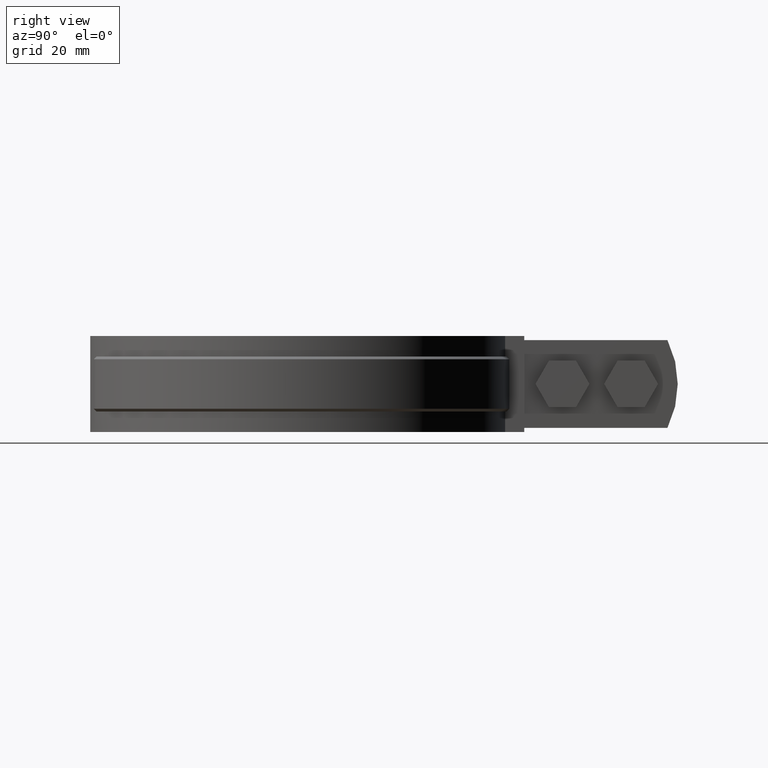
[diagram: clean part render]
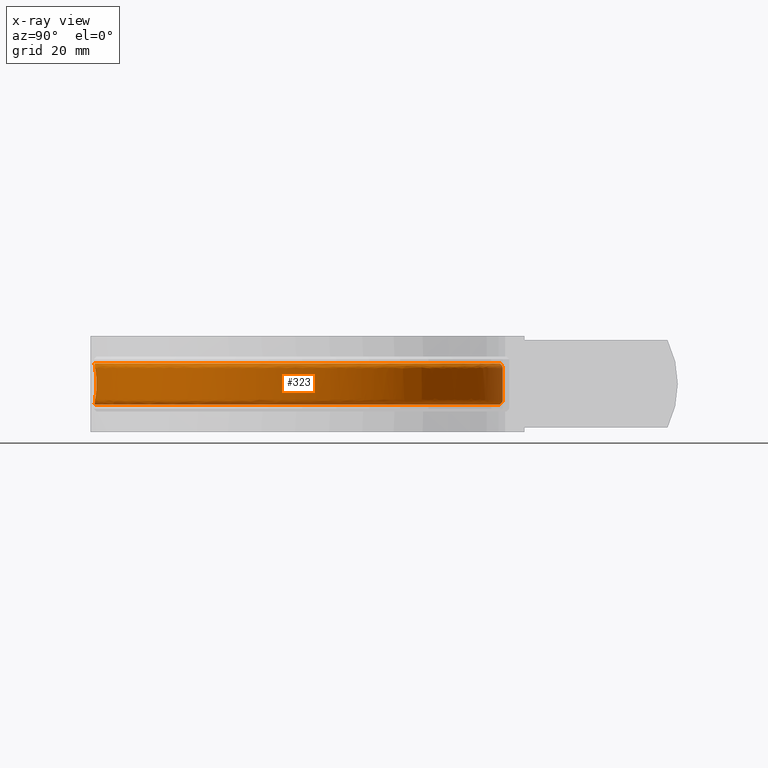
[diagram: x-ray — body ghosted, one internal face saturated and labeled with its STEP entity id]
A machine part, right view, then the same camera in x-ray: the body is ghosted and one INTERNAL B-rep face — a face not visible from any outside direction — is saturated and labeled: STEP entity #323.
In plain terms, the highlighted face is a freeform B-spline surface patch.
Its self-contained STEP definition (entity closure, byte-faithful):
#323 = ADVANCED_FACE( '', ( #484, #485 ), #486, .F. );
#484 = FACE_OUTER_BOUND( '', #816, .T. );
#485 = FACE_BOUND( '', #817, .T. );
#486 = B_SPLINE_SURFACE_WITH_KNOTS( '', 3, 3, ( ( #818, #819, #820, #821, #822, #823, #824, #825, #826, #827, #828, #829, #830, #831, #832, #833, #834 ), ( #835, #836, #837, #838, #839, #840, #841, #842, #843, #844, #845, #846, #847, #848, #849, #850, #851 ), ( #852, #853, #854, #855, #856, #857, #858, #859, #860, #861, #862, #863, #864, #865, #866, #867, #868 ), ( #869, #870, #871, #872, #873, #874, #875, #876, #877, #878, #879, #880, #881, #882, #883, #884, #885 ), ( #886, #887, #888, #889, #890, #891, #892, #893, #894, #895, #896, #897, #898, #899, #900, #901, #902 ), ( #903, #904, #905, #906, #907, #908, #909, #910, #911, #912, #913, #914, #915, #916, #917, #918, #919 ), ( #920, #921, #922, #923, #924, #925, #926, #927, #928, #929, #930, #931, #932, #933, #934, #935, #936 ), ( #937, #938, #939, #940, #941, #942, #943, #944, #945, #946, #947, #948, #949, #950, #951, #952, #953 ), ( #954, #955, #956, #957, #958, #959, #960, #961, #962, #963, #964, #965, #966, #967, #968, #969, #970 ), ( #971, #972, #973, #974, #975, #976, #977, #978, #979, #980, #981, #982, #983, #984, #985, #986, #987 ), ( #988, #989, #990, #991, #992, #993, #994, #995, #996, #997, #998, #999, #1000, #1001, #1002, #1003, #1004 ), ( #1005, #1006, #1007, #1008, #1009, #1010, #1011, #1012, #1013, #1014, #1015, #1016, #1017, #1018, #1019, #1020, #1021 ), ( #1022, #1023, #1024, #1025, #1026, #1027, #1028, #1029, #1030, #1031, #1032, #1033, #1034, #1035, #1036, #1037, #1038 ), ( #1039, #1040, #1041, #1042, #1043, #1044, #1045, #1046, #1047, #1048, #1049, #1050, #1051, #1052, #1053, #1054, #1055 ), ( #1056, #1057, #1058, #1059, #1060, #1061, #1062, #1063, #1064, #1065, #1066, #1067, #1068, #1069, #1070, #1071, #1072 ), ( #1073, #1074, #1075, #1076, #1077, #1078, #1079, #1080, #1081, #1082, #1083, #1084, #1085, #1086, #1087, #1088, #1089 ), ( #1090, #1091, #1092, #1093, #1094, #1095, #1096, #1097, #1098, #1099, #1100, #1101, #1102, #1103, #1104, #1105, #1106 ), ( #1107, #1108, #1109, #1110, #1111, #1112, #1113, #1114, #1115, #1116, #1117, #1118, #1119, #1120, #1121, #1122, #1123 ), ( #1124, #1125, #1126, #1127, #1128, #1129, #1130, #1131, #1132, #1133, #1134, #1135, #1136, #1137, #1138, #1139, #1140 ), ( #1141, #1142, #1143, #1144, #1145, #1146, #1147, #1148, #1149, #1150, #1151, #1152, #1153, #1154, #1155, #1156, #1157 ), ( #1158, #1159, #1160, #1161, #1162, #1163, #1164, #1165, #1166, #1167, #1168, #1169, #1170, #1171, #1172, #1173, #1174 ), ( #1175, #1176, #1177, #1178, #1179, #1180, #1181, #1182, #1183, #1184, #1185, #1186, #1187, #1188, #1189, #1190, #1191 ) ), .UNSPECIFIED., .F., .F., .F., ( 4, 3, 1, 1, 1, 3, 3, 1, 1, 1, 3, 4 ), ( 4, 1, 1, 1, 1, 1, 1, 1, 1, 1, 1, 1, 1, 1, 4 ), ( 0.000000000000000, 0.0909090909090909, 0.181818181818182, 0.272727272727273, 0.363636363636364, 0.454545454545455, 0.545454545454545, 0.636363636363636, 0.727272727272727, 0.818181818181818, 0.909090909090909, 1.00000000000000 ), ( 2.93919432429586, 4.00000000000000, 5.00000000000000, 6.00000000000000, 7.00000000000000, 8.00000000000000, 9.00000000000000, 10.0000000000000, 11.0000000000000, 12.0000000000000, 13.0000000000000, 14.0000000000000, 15.0000000000000, 16.0000000000000, 17.0000000000000 ), .UNSPECIFIED. );
#816 = EDGE_LOOP( '', ( #2330, #2331, #2332, #2333, #2334, #2335, #2336, #2337, #2338, #2339, #2340, #2341 ) );
#817 = EDGE_LOOP( '', ( #2342, #2343, #2344, #2345, #2346, #2347, #2348, #2349, #2350, #2351 ) );
#818 = CARTESIAN_POINT( '', ( -4.61425015195980, 70.7622317509286, -26.5000000000000 ) );
#819 = CARTESIAN_POINT( '', ( -15.5904203630949, 70.0470349368722, -26.5000000000000 ) );
#820 = CARTESIAN_POINT( '', ( -36.6178724669983, 63.5869264265580, -26.5000000000000 ) );
#821 = CARTESIAN_POINT( '', ( -60.4171282819462, 41.3778170815072, -26.5000000000000 ) );
#822 = CARTESIAN_POINT( '', ( -72.2798619034494, 11.7564386340877, -26.5000000000000 ) );
#823 = CARTESIAN_POINT( '', ( -70.4173990652024, -20.0977563256707, -26.5000000000000 ) );
#824 = CARTESIAN_POINT( '', ( -55.1858107136761, -48.1359457803464, -26.5000000000000 ) );
#825 = CARTESIAN_POINT( '', ( -29.4763509782398, -67.0349598757568, -26.5000000000000 ) );
#826 = CARTESIAN_POINT( '', ( 1.82953666322226, -73.2065161750958, -26.5000000000000 ) );
#827 = CARTESIAN_POINT( '', ( 32.7880639153756, -65.4788766479587, -26.5000000000000 ) );
#828 = CARTESIAN_POINT( '', ( 57.5213898570196, -45.3192513699048, -26.5000000000000 ) );
#829 = CARTESIAN_POINT( '', ( 71.3334128422005, -16.5551173620569, -26.5000000000000 ) );
#830 = CARTESIAN_POINT( '', ( 71.6023635221745, 15.3519610054325, -26.5000000000000 ) );
#831 = CARTESIAN_POINT( '', ( 58.2748608361785, 44.3452311182272, -26.5000000000000 ) );
#832 = CARTESIAN_POINT( '', ( 33.8899510704301, 64.9154153993196, -26.5000000000000 ) );
#833 = CARTESIAN_POINT( '', ( 13.3267450073814, 70.4210865172577, -26.5000000000000 ) );
#834 = CARTESIAN_POINT( '', ( 2.96461729470620, 70.8501201839495, -26.5000000000000 ) );
#835 = CARTESIAN_POINT( '', ( -4.58330382231513, 71.8998896366214, -25.3619288125423 ) );
#836 = CARTESIAN_POINT( '', ( -15.7397192382122, 71.1895043673446, -25.3619288125423 ) );
#837 = CARTESIAN_POINT( '', ( -37.1081463681043, 64.6569728626535, -25.3619288125423 ) );
#838 = CARTESIAN_POINT( '', ( -61.3221754302980, 42.1279841595101, -25.3619288125423 ) );
#839 = CARTESIAN_POINT( '', ( -73.4176082499287, 12.0506522216709, -25.3619288125423 ) );
#840 = CARTESIAN_POINT( '', ( -71.5723646246281, -20.3153564475006, -25.3619288125423 ) );
#841 = CARTESIAN_POINT( '', ( -56.1385669859300, -48.8240454349474, -25.3619288125423 ) );
#842 = CARTESIAN_POINT( '', ( -30.0460432527390, -68.0629145587926, -25.3619288125423 ) );
#843 = CARTESIAN_POINT( '', ( 1.75108133303469, -74.3791554281481, -25.3619288125423 ) );
#844 = CARTESIAN_POINT( '', ( 33.2157412539665, -66.5735602607233, -25.3619288125423 ) );
#845 = CARTESIAN_POINT( '', ( 58.3739903704118, -46.1281382677739, -25.3619288125423 ) );
#846 = CARTESIAN_POINT( '', ( 72.4490973285679, -16.9246351334278, -25.3619288125423 ) );
#847 = CARTESIAN_POINT( '', ( 72.7691627760226, 15.4919891642614, -25.3619288125423 ) );
#848 = CARTESIAN_POINT( '', ( 59.2717740308285, 44.9681477001160, -25.3619288125423 ) );
#849 = CARTESIAN_POINT( '', ( 34.5257198776660, 65.9032180638756, -25.3619288125423 ) );
#850 = CARTESIAN_POINT( '', ( 13.6462086014126, 71.5264525608277, -25.3619288125423 ) );
#851 = CARTESIAN_POINT( '', ( 3.11622377686040, 71.9780481525229, -25.3619288125423 ) );
#852 = CARTESIAN_POINT( '', ( -4.55235749267045, 73.0375475223142, -24.2238576250846 ) );
#853 = CARTESIAN_POINT( '', ( -15.8890181133296, 72.3319737978169, -24.2238576250846 ) );
#854 = CARTESIAN_POINT( '', ( -37.5984202692104, 65.7270192987490, -24.2238576250846 ) );
#855 = CARTESIAN_POINT( '', ( -62.2272225786497, 42.8781512375131, -24.2238576250846 ) );
#856 = CARTESIAN_POINT( '', ( -74.5553545964080, 12.3448658092541, -24.2238576250846 ) );
#857 = CARTESIAN_POINT( '', ( -72.7273301840538, -20.5329565693305, -24.2238576250846 ) );
#858 = CARTESIAN_POINT( '', ( -57.0913232581840, -49.5121450895483, -24.2238576250846 ) );
#859 = CARTESIAN_POINT( '', ( -30.6157355272383, -69.0908692418285, -24.2238576250846 ) );
#860 = CARTESIAN_POINT( '', ( 1.67262600284711, -75.5517946812004, -24.2238576250846 ) );
#861 = CARTESIAN_POINT( '', ( 33.6434185925574, -67.6682438734879, -24.2238576250846 ) );
#862 = CARTESIAN_POINT( '', ( 59.2265908838041, -46.9370251656430, -24.2238576250846 ) );
#863 = CARTESIAN_POINT( '', ( 73.5647818149354, -17.2941529047986, -24.2238576250846 ) );
#864 = CARTESIAN_POINT( '', ( 73.9359620298707, 15.6320173230902, -24.2238576250846 ) );
#865 = CARTESIAN_POINT( '', ( 60.2686872254784, 45.5910642820048, -24.2238576250846 ) );
#866 = CARTESIAN_POINT( '', ( 35.1614886849019, 66.8910207284315, -24.2238576250846 ) );
#867 = CARTESIAN_POINT( '', ( 13.9656721954438, 72.6318186043977, -24.2238576250846 ) );
#868 = CARTESIAN_POINT( '', ( 3.26783025901459, 73.1059761210964, -24.2238576250846 ) );
#869 = CARTESIAN_POINT( '', ( -4.52141116302577, 74.1752054080070, -23.0857864376269 ) );
#870 = CARTESIAN_POINT( '', ( -16.0383169884469, 73.4744432282892, -23.0857864376269 ) );
#871 = CARTESIAN_POINT( '', ( -38.0886941703164, 66.7970657348446, -23.0857864376269 ) );
#872 = CARTESIAN_POINT( '', ( -63.1322697270015, 43.6283183155160, -23.0857864376269 ) );
#873 = CARTESIAN_POINT( '', ( -75.6931009428873, 12.6390793968372, -23.0857864376269 ) );
#874 = CARTESIAN_POINT( '', ( -73.8822957434795, -20.7505566911604, -23.0857864376269 ) );
#875 = CARTESIAN_POINT( '', ( -58.0440795304379, -50.2002447441493, -23.0857864376269 ) );
#876 = CARTESIAN_POINT( '', ( -31.1854278017375, -70.1188239248644, -23.0857864376269 ) );
#877 = CARTESIAN_POINT( '', ( 1.59417067265954, -76.7244339342527, -23.0857864376269 ) );
#878 = CARTESIAN_POINT( '', ( 34.0710959311483, -68.7629274862524, -23.0857864376269 ) );
#879 = CARTESIAN_POINT( '', ( 60.0791913971964, -47.7459120635122, -23.0857864376269 ) );
#880 = CARTESIAN_POINT( '', ( 74.6804663013028, -17.6636706761694, -23.0857864376269 ) );
#881 = CARTESIAN_POINT( '', ( 75.1027612837188, 15.7720454819191, -23.0857864376269 ) );
#882 = CARTESIAN_POINT( '', ( 61.2656004201283, 46.2139808638935, -23.0857864376269 ) );
#883 = CARTESIAN_POINT( '', ( 35.7972574921378, 67.8788233929875, -23.0857864376269 ) );
#884 = CARTESIAN_POINT( '', ( 14.2851357894750, 73.7371846479677, -23.0857864376269 ) );
#885 = CARTESIAN_POINT( '', ( 3.41943674116879, 74.2339040896698, -23.0857864376269 ) );
#886 = CARTESIAN_POINT( '', ( -4.51889429902262, 74.2677310875714, -22.9932271442431 ) );
#887 = CARTESIAN_POINT( '', ( -16.0504594611992, 73.5673602306371, -22.9932271442431 ) );
#888 = CARTESIAN_POINT( '', ( -38.1285681310589, 66.8840925773693, -22.9932271442431 ) );
#889 = CARTESIAN_POINT( '', ( -63.2058771827157, 43.6893293800478, -22.9932271442431 ) );
#890 = CARTESIAN_POINT( '', ( -75.7856338169647, 12.6630077785331, -22.9932271442431 ) );
#891 = CARTESIAN_POINT( '', ( -73.9762290555967, -20.7682541021297, -22.9932271442431 ) );
#892 = CARTESIAN_POINT( '', ( -58.1215671676777, -50.2562078671151, -22.9932271442431 ) );
#893 = CARTESIAN_POINT( '', ( -31.2317608562555, -70.2024274464551, -22.9932271442431 ) );
#894 = CARTESIAN_POINT( '', ( 1.58778990315726, -76.8198046473089, -22.9932271442431 ) );
#895 = CARTESIAN_POINT( '', ( 34.1058789154577, -68.8519580695700, -22.9932271442431 ) );
#896 = CARTESIAN_POINT( '', ( 60.1485333697619, -47.8116988091211, -22.9932271442431 ) );
#897 = CARTESIAN_POINT( '', ( 74.7712048850009, -17.6937235447314, -22.9932271442431 ) );
#898 = CARTESIAN_POINT( '', ( 75.1976570298260, 15.7834339676113, -22.9932271442431 ) );
#899 = CARTESIAN_POINT( '', ( 61.3466793384585, 46.2646426496342, -22.9932271442431 ) );
#900 = CARTESIAN_POINT( '', ( 35.8489645489562, 67.9591613521956, -22.9932271442431 ) );
#901 = CARTESIAN_POINT( '', ( 14.3111177533902, 73.8270840330420, -22.9932271442431 ) );
#902 = CARTESIAN_POINT( '', ( 3.43176689152779, 74.3256384353852, -22.9932271442431 ) );
#903 = CARTESIAN_POINT( '', ( -4.51435634995178, 74.4345564786465, -22.7898759680773 ) );
#904 = CARTESIAN_POINT( '', ( -16.0723525483405, 73.7348911834190, -22.7898759680773 ) );
#905 = CARTESIAN_POINT( '', ( -38.2004615678421, 67.0410034707188, -22.7898759680773 ) );
#906 = CARTESIAN_POINT( '', ( -63.3385926909225, 43.7993333783792, -22.7898759680773 ) );
#907 = CARTESIAN_POINT( '', ( -75.9524721798704, 12.7061510621384, -22.7898759680773 ) );
#908 = CARTESIAN_POINT( '', ( -74.1455924323663, -20.8001628383841, -22.7898759680773 ) );
#909 = CARTESIAN_POINT( '', ( -58.2612787098881, -50.3571103400123, -22.7898759680773 ) );
#910 = CARTESIAN_POINT( '', ( -31.3153001501689, -70.3531660333023, -22.7898759680773 ) );
#911 = CARTESIAN_POINT( '', ( 1.57628526603826, -76.9917596826853, -22.7898759680773 ) );
#912 = CARTESIAN_POINT( '', ( 34.1685932342012, -69.0124817420199, -22.7898759680773 ) );
#913 = CARTESIAN_POINT( '', ( 60.2735581385138, -47.9303134425444, -22.7898759680773 ) );
#914 = CARTESIAN_POINT( '', ( 74.9348081115028, -17.7479093834562, -22.7898759680773 ) );
#915 = CARTESIAN_POINT( '', ( 75.3687556916270, 15.8039676031197, -22.7898759680772 ) );
#916 = CARTESIAN_POINT( '', ( 61.4928660222207, 46.3559867203673, -22.7898759680773 ) );
#917 = CARTESIAN_POINT( '', ( 35.9421932614139, 68.1040120739214, -22.7898759680773 ) );
#918 = CARTESIAN_POINT( '', ( 14.3579636810445, 73.9891741699969, -22.7898759680773 ) );
#919 = CARTESIAN_POINT( '', ( 3.45399836462085, 74.4910370379249, -22.7898759680773 ) );
#920 = CARTESIAN_POINT( '', ( -4.50929834940872, 74.6205001517645, -22.4418734431229 ) );
#921 = CARTESIAN_POINT( '', ( -16.0967545953714, 73.9216212760054, -22.4418734431229 ) );
#922 = CARTESIAN_POINT( '', ( -38.2805940322253, 67.2158964391909, -22.4418734431229 ) );
#923 = CARTESIAN_POINT( '', ( -63.4865174697386, 43.9219438957327, -22.4418734431229 ) );
#924 = CARTESIAN_POINT( '', ( -76.1384303113979, 12.7542385898956, -22.4418734431229 ) );
#925 = CARTESIAN_POINT( '', ( -74.3343649457424, -20.8357283334532, -22.4418734431229 ) );
#926 = CARTESIAN_POINT( '', ( -58.4170012720723, -50.4695762920853, -22.4418734431229 ) );
#927 = CARTESIAN_POINT( '', ( -31.4084130933477, -70.5211793455347, -22.4418734431229 ) );
#928 = CARTESIAN_POINT( '', ( 1.56346219114533, -77.1834208601773, -22.4418734431229 ) );
#929 = CARTESIAN_POINT( '', ( 34.2384946485429, -69.1914015160745, -22.4418734431229 ) );
#930 = CARTESIAN_POINT( '', ( 60.4129108148818, -48.0625213785315, -22.4418734431229 ) );
#931 = CARTESIAN_POINT( '', ( 75.1171603582062, -17.8083049492543, -22.4418734431229 ) );
#932 = CARTESIAN_POINT( '', ( 75.5594623546585, 15.8268544046090, -22.4418734431229 ) );
#933 = CARTESIAN_POINT( '', ( 61.6558057807582, 46.4577988721040, -22.4418734431229 ) );
#934 = CARTESIAN_POINT( '', ( 36.0461060358587, 68.2654627684344, -22.4418734431229 ) );
#935 = CARTESIAN_POINT( '', ( 14.4101781779057, 74.1698399262547, -22.4418734431229 ) );
#936 = CARTESIAN_POINT( '', ( 3.47877757682056, 74.6753904117525, -22.4418734431229 ) );
#937 = CARTESIAN_POINT( '', ( -4.50618364805317, 74.7350037003084, -22.0642686993349 ) );
#938 = CARTESIAN_POINT( '', ( -16.1117813017385, 74.0366090992668, -22.0642686993349 ) );
#939 = CARTESIAN_POINT( '', ( -38.3299393601495, 67.3235949974134, -22.0642686993349 ) );
#940 = CARTESIAN_POINT( '', ( -63.5776090987679, 43.9974470795214, -22.0642686993349 ) );
#941 = CARTESIAN_POINT( '', ( -76.2529427633863, 12.7838507432782, -22.0642686993349 ) );
#942 = CARTESIAN_POINT( '', ( -74.4506104855162, -20.8576294571798, -22.0642686993349 ) );
#943 = CARTESIAN_POINT( '', ( -58.5128947523905, -50.5388324834188, -22.0642686993349 ) );
#944 = CARTESIAN_POINT( '', ( -31.4657517606470, -70.6246414323625, -22.0642686993349 ) );
#945 = CARTESIAN_POINT( '', ( 1.55556578061486, -77.3014452305305, -22.0642686993349 ) );
#946 = CARTESIAN_POINT( '', ( 34.2815397269591, -69.3015797689313, -22.0642686993349 ) );
#947 = CARTESIAN_POINT( '', ( 60.4987237692871, -48.1439346235337, -22.0642686993349 ) );
#948 = CARTESIAN_POINT( '', ( 75.2294523172837, -17.8454963550399, -22.0642686993349 ) );
#949 = CARTESIAN_POINT( '', ( 75.6768989379091, 15.8409480273788, -22.0642686993349 ) );
#950 = CARTESIAN_POINT( '', ( 61.7561435886468, 46.5204944855832, -22.0642686993349 ) );
#951 = CARTESIAN_POINT( '', ( 36.1100952064147, 68.3648836152243, -22.0642686993349 ) );
#952 = CARTESIAN_POINT( '', ( 14.4423317063145, 74.2810933496436, -22.0642686993349 ) );
#953 = CARTESIAN_POINT( '', ( 3.49403654035189, 74.7889146588287, -22.0642686993349 ) );
#954 = CARTESIAN_POINT( '', ( -4.50548251075870, 74.7607791115174, -21.8024714832808 ) );
#955 = CARTESIAN_POINT( '', ( -16.1151639002750, 74.0624935235164, -21.8024714832808 ) );
#956 = CARTESIAN_POINT( '', ( -38.3410472789404, 67.3478385659326, -21.8024714832808 ) );
#957 = CARTESIAN_POINT( '', ( -63.5981143514503, 44.0144432829971, -21.8024714832808 ) );
#958 = CARTESIAN_POINT( '', ( -76.2787201788122, 12.7905166103184, -21.8024714832808 ) );
#959 = CARTESIAN_POINT( '', ( -74.4767780290289, -20.8625595268342, -21.8024714832809 ) );
#960 = CARTESIAN_POINT( '', ( -58.5344809295780, -50.5544224527524, -21.8024714832808 ) );
#961 = CARTESIAN_POINT( '', ( -31.4786590263747, -70.6479313466616, -21.8024714832808 ) );
#962 = CARTESIAN_POINT( '', ( 1.55378825292173, -77.3280131990977, -21.8024714832808 ) );
#963 = CARTESIAN_POINT( '', ( 34.2912294231372, -69.3263815310582, -21.8024714832808 ) );
#964 = CARTESIAN_POINT( '', ( 60.5180407617732, -48.1622612159798, -21.8024714832808 ) );
#965 = CARTESIAN_POINT( '', ( 75.2547298869092, -17.8538683556438, -21.8024714832808 ) );
#966 = CARTESIAN_POINT( '', ( 75.7033345921990, 15.8441205833994, -21.8024714832808 ) );
#967 = CARTESIAN_POINT( '', ( 61.7787302096819, 46.5346076308873, -21.8024714832809 ) );
#968 = CARTESIAN_POINT( '', ( 36.1244995389003, 68.3872638230112, -21.8024714832808 ) );
#969 = CARTESIAN_POINT( '', ( 14.4495696515756, 74.3061371388774, -21.8024714832808 ) );
#970 = CARTESIAN_POINT( '', ( 3.49747142131972, 74.8144696236118, -21.8024714832808 ) );
#971 = CARTESIAN_POINT( '', ( -4.50548251075870, 74.7607791115174, -21.6715728752538 ) );
#972 = CARTESIAN_POINT( '', ( -16.1151639002750, 74.0624935235164, -21.6715728752538 ) );
#973 = CARTESIAN_POINT( '', ( -38.3410472789404, 67.3478385659326, -21.6715728752538 ) );
#974 = CARTESIAN_POINT( '', ( -63.5981143514503, 44.0144432829971, -21.6715728752538 ) );
#975 = CARTESIAN_POINT( '', ( -76.2787201788122, 12.7905166103184, -21.6715728752538 ) );
#976 = CARTESIAN_POINT( '', ( -74.4767780290289, -20.8625595268342, -21.6715728752538 ) );
#977 = CARTESIAN_POINT( '', ( -58.5344809295780, -50.5544224527524, -21.6715728752538 ) );
#978 = CARTESIAN_POINT( '', ( -31.4786590263747, -70.6479313466616, -21.6715728752538 ) );
#979 = CARTESIAN_POINT( '', ( 1.55378825292173, -77.3280131990977, -21.6715728752538 ) );
#980 = CARTESIAN_POINT( '', ( 34.2912294231372, -69.3263815310582, -21.6715728752538 ) );
#981 = CARTESIAN_POINT( '', ( 60.5180407617732, -48.1622612159798, -21.6715728752538 ) );
#982 = CARTESIAN_POINT( '', ( 75.2547298869092, -17.8538683556438, -21.6715728752538 ) );
#983 = CARTESIAN_POINT( '', ( 75.7033345921990, 15.8441205833994, -21.6715728752538 ) );
#984 = CARTESIAN_POINT( '', ( 61.7787302096819, 46.5346076308873, -21.6715728752538 ) );
#985 = CARTESIAN_POINT( '', ( 36.1244995389003, 68.3872638230112, -21.6715728752538 ) );
#986 = CARTESIAN_POINT( '', ( 14.4495696515756, 74.3061371388774, -21.6715728752538 ) );
#987 = CARTESIAN_POINT( '', ( 3.49747142131972, 74.8144696236118, -21.6715728752538 ) );
#988 = CARTESIAN_POINT( '', ( -4.50548251075870, 74.7607791115174, -17.8905242917513 ) );
#989 = CARTESIAN_POINT( '', ( -16.1151639002750, 74.0624935235164, -17.8905242917513 ) );
#990 = CARTESIAN_POINT( '', ( -38.3410472789404, 67.3478385659326, -17.8905242917513 ) );
#991 = CARTESIAN_POINT( '', ( -63.5981143514503, 44.0144432829971, -17.8905242917513 ) );
#992 = CARTESIAN_POINT( '', ( -76.2787201788122, 12.7905166103184, -17.8905242917513 ) );
#993 = CARTESIAN_POINT( '', ( -74.4767780290289, -20.8625595268342, -17.8905242917513 ) );
#994 = CARTESIAN_POINT( '', ( -58.5344809295780, -50.5544224527524, -17.8905242917513 ) );
#995 = CARTESIAN_POINT( '', ( -31.4786590263747, -70.6479313466616, -17.8905242917513 ) );
#996 = CARTESIAN_POINT( '', ( 1.55378825292173, -77.3280131990977, -17.8905242917513 ) );
#997 = CARTESIAN_POINT( '', ( 34.2912294231372, -69.3263815310582, -17.8905242917513 ) );
#998 = CARTESIAN_POINT( '', ( 60.5180407617732, -48.1622612159798, -17.8905242917513 ) );
#999 = CARTESIAN_POINT( '', ( 75.2547298869093, -17.8538683556439, -17.8905242917513 ) );
#1000 = CARTESIAN_POINT( '', ( 75.7033345921990, 15.8441205833994, -17.8905242917512 ) );
#1001 = CARTESIAN_POINT( '', ( 61.7787302096820, 46.5346076308873, -17.8905242917513 ) );
#1002 = CARTESIAN_POINT( '', ( 36.1244995389003, 68.3872638230113, -17.8905242917513 ) );
#1003 = CARTESIAN_POINT( '', ( 14.4495696515756, 74.3061371388774, -17.8905242917513 ) );
#1004 = CARTESIAN_POINT( '', ( 3.49747142131972, 74.8144696236118, -17.8905242917513 ) );
#1005 = CARTESIAN_POINT( '', ( -4.50548251075870, 74.7607791115174, -14.1094757082487 ) );
#1006 = CARTESIAN_POINT( '', ( -16.1151639002750, 74.0624935235164, -14.1094757082487 ) );
#1007 = CARTESIAN_POINT( '', ( -38.3410472789404, 67.3478385659326, -14.1094757082487 ) );
#1008 = CARTESIAN_POINT( '', ( -63.5981143514503, 44.0144432829971, -14.1094757082487 ) );
#1009 = CARTESIAN_POINT( '', ( -76.2787201788122, 12.7905166103184, -14.1094757082487 ) );
#1010 = CARTESIAN_POINT( '', ( -74.4767780290289, -20.8625595268342, -14.1094757082487 ) );
#1011 = CARTESIAN_POINT( '', ( -58.5344809295780, -50.5544224527524, -14.1094757082487 ) );
#1012 = CARTESIAN_POINT( '', ( -31.4786590263747, -70.6479313466616, -14.1094757082487 ) );
#1013 = CARTESIAN_POINT( '', ( 1.55378825292173, -77.3280131990977, -14.1094757082487 ) );
#1014 = CARTESIAN_POINT( '', ( 34.2912294231372, -69.3263815310582, -14.1094757082487 ) );
#1015 = CARTESIAN_POINT( '', ( 60.5180407617732, -48.1622612159798, -14.1094757082487 ) );
#1016 = CARTESIAN_POINT( '', ( 75.2547298869093, -17.8538683556439, -14.1094757082487 ) );
#1017 = CARTESIAN_POINT( '', ( 75.7033345921990, 15.8441205833994, -14.1094757082487 ) );
#1018 = CARTESIAN_POINT( '', ( 61.7787302096820, 46.5346076308873, -14.1094757082487 ) );
#1019 = CARTESIAN_POINT( '', ( 36.1244995389003, 68.3872638230113, -14.1094757082487 ) );
#1020 = CARTESIAN_POINT( '', ( 14.4495696515756, 74.3061371388774, -14.1094757082487 ) );
#1021 = CARTESIAN_POINT( '', ( 3.49747142131972, 74.8144696236118, -14.1094757082487 ) );
#1022 = CARTESIAN_POINT( '', ( -4.50548251075870, 74.7607791115174, -10.3284271247462 ) );
#1023 = CARTESIAN_POINT( '', ( -16.1151639002750, 74.0624935235164, -10.3284271247462 ) );
#1024 = CARTESIAN_POINT( '', ( -38.3410472789404, 67.3478385659326, -10.3284271247462 ) );
#1025 = CARTESIAN_POINT( '', ( -63.5981143514503, 44.0144432829971, -10.3284271247462 ) );
#1026 = CARTESIAN_POINT( '', ( -76.2787201788122, 12.7905166103184, -10.3284271247462 ) );
#1027 = CARTESIAN_POINT( '', ( -74.4767780290289, -20.8625595268342, -10.3284271247462 ) );
#1028 = CARTESIAN_POINT( '', ( -58.5344809295780, -50.5544224527524, -10.3284271247462 ) );
#1029 = CARTESIAN_POINT( '', ( -31.4786590263747, -70.6479313466616, -10.3284271247462 ) );
#1030 = CARTESIAN_POINT( '', ( 1.55378825292173, -77.3280131990977, -10.3284271247462 ) );
#1031 = CARTESIAN_POINT( '', ( 34.2912294231372, -69.3263815310582, -10.3284271247462 ) );
#1032 = CARTESIAN_POINT( '', ( 60.5180407617732, -48.1622612159798, -10.3284271247462 ) );
#1033 = CARTESIAN_POINT( '', ( 75.2547298869093, -17.8538683556439, -10.3284271247462 ) );
#1034 = CARTESIAN_POINT( '', ( 75.7033345921990, 15.8441205833994, -10.3284271247462 ) );
#1035 = CARTESIAN_POINT( '', ( 61.7787302096820, 46.5346076308873, -10.3284271247462 ) );
#1036 = CARTESIAN_POINT( '', ( 36.1244995389003, 68.3872638230113, -10.3284271247462 ) );
#1037 = CARTESIAN_POINT( '', ( 14.4495696515756, 74.3061371388774, -10.3284271247462 ) );
#1038 = CARTESIAN_POINT( '', ( 3.49747142131972, 74.8144696236118, -10.3284271247462 ) );
#1039 = CARTESIAN_POINT( '', ( -4.50548251075870, 74.7607791115174, -10.1975285167192 ) );
#1040 = CARTESIAN_POINT( '', ( -16.1151639002750, 74.0624935235164, -10.1975285167192 ) );
#1041 = CARTESIAN_POINT( '', ( -38.3410472789404, 67.3478385659326, -10.1975285167192 ) );
#1042 = CARTESIAN_POINT( '', ( -63.5981143514503, 44.0144432829971, -10.1975285167192 ) );
#1043 = CARTESIAN_POINT( '', ( -76.2787201788122, 12.7905166103184, -10.1975285167192 ) );
#1044 = CARTESIAN_POINT( '', ( -74.4767780290289, -20.8625595268342, -10.1975285167192 ) );
#1045 = CARTESIAN_POINT( '', ( -58.5344809295780, -50.5544224527524, -10.1975285167192 ) );
#1046 = CARTESIAN_POINT( '', ( -31.4786590263747, -70.6479313466616, -10.1975285167192 ) );
#1047 = CARTESIAN_POINT( '', ( 1.55378825292173, -77.3280131990977, -10.1975285167192 ) );
#1048 = CARTESIAN_POINT( '', ( 34.2912294231372, -69.3263815310582, -10.1975285167192 ) );
#1049 = CARTESIAN_POINT( '', ( 60.5180407617732, -48.1622612159798, -10.1975285167192 ) );
#1050 = CARTESIAN_POINT( '', ( 75.2547298869093, -17.8538683556439, -10.1975285167192 ) );
#1051 = CARTESIAN_POINT( '', ( 75.7033345921990, 15.8441205833994, -10.1975285167192 ) );
#1052 = CARTESIAN_POINT( '', ( 61.7787302096820, 46.5346076308873, -10.1975285167192 ) );
#1053 = CARTESIAN_POINT( '', ( 36.1244995389003, 68.3872638230113, -10.1975285167192 ) );
#1054 = CARTESIAN_POINT( '', ( 14.4495696515756, 74.3061371388774, -10.1975285167192 ) );
#1055 = CARTESIAN_POINT( '', ( 3.49747142131972, 74.8144696236118, -10.1975285167192 ) );
#1056 = CARTESIAN_POINT( '', ( -4.50618364805317, 74.7350037003084, -9.93573130066510 ) );
#1057 = CARTESIAN_POINT( '', ( -16.1117813017385, 74.0366090992668, -9.93573130066510 ) );
#1058 = CARTESIAN_POINT( '', ( -38.3299393601495, 67.3235949974135, -9.93573130066510 ) );
#1059 = CARTESIAN_POINT( '', ( -63.5776090987679, 43.9974470795214, -9.93573130066510 ) );
#1060 = CARTESIAN_POINT( '', ( -76.2529427633863, 12.7838507432782, -9.93573130066510 ) );
#1061 = CARTESIAN_POINT( '', ( -74.4506104855162, -20.8576294571798, -9.93573130066511 ) );
#1062 = CARTESIAN_POINT( '', ( -58.5128947523905, -50.5388324834188, -9.93573130066510 ) );
#1063 = CARTESIAN_POINT( '', ( -31.4657517606470, -70.6246414323625, -9.93573130066511 ) );
#1064 = CARTESIAN_POINT( '', ( 1.55556578061486, -77.3014452305306, -9.93573130066510 ) );
#1065 = CARTESIAN_POINT( '', ( 34.2815397269591, -69.3015797689313, -9.93573130066510 ) );
#1066 = CARTESIAN_POINT( '', ( 60.4987237692871, -48.1439346235337, -9.93573130066510 ) );
#1067 = CARTESIAN_POINT( '', ( 75.2294523172837, -17.8454963550399, -9.93573130066510 ) );
#1068 = CARTESIAN_POINT( '', ( 75.6768989379092, 15.8409480273788, -9.93573130066510 ) );
#1069 = CARTESIAN_POINT( '', ( 61.7561435886468, 46.5204944855833, -9.93573130066511 ) );
#1070 = CARTESIAN_POINT( '', ( 36.1100952064147, 68.3648836152242, -9.93573130066511 ) );
#1071 = CARTESIAN_POINT( '', ( 14.4423317063145, 74.2810933496436, -9.93573130066510 ) );
#1072 = CARTESIAN_POINT( '', ( 3.49403654035189, 74.7889146588287, -9.93573130066510 ) );
#1073 = CARTESIAN_POINT( '', ( -4.50929834940872, 74.6205001517646, -9.55812655687708 ) );
#1074 = CARTESIAN_POINT( '', ( -16.0967545953714, 73.9216212760054, -9.55812655687708 ) );
#1075 = CARTESIAN_POINT( '', ( -38.2805940322253, 67.2158964391909, -9.55812655687708 ) );
#1076 = CARTESIAN_POINT( '', ( -63.4865174697386, 43.9219438957327, -9.55812655687707 ) );
#1077 = CARTESIAN_POINT( '', ( -76.1384303113979, 12.7542385898956, -9.55812655687708 ) );
#1078 = CARTESIAN_POINT( '', ( -74.3343649457424, -20.8357283334532, -9.55812655687708 ) );
#1079 = CARTESIAN_POINT( '', ( -58.4170012720724, -50.4695762920853, -9.55812655687708 ) );
#1080 = CARTESIAN_POINT( '', ( -31.4084130933477, -70.5211793455347, -9.55812655687708 ) );
#1081 = CARTESIAN_POINT( '', ( 1.56346219114533, -77.1834208601773, -9.55812655687708 ) );
#1082 = CARTESIAN_POINT( '', ( 34.2384946485429, -69.1914015160745, -9.55812655687708 ) );
#1083 = CARTESIAN_POINT( '', ( 60.4129108148818, -48.0625213785315, -9.55812655687708 ) );
#1084 = CARTESIAN_POINT( '', ( 75.1171603582062, -17.8083049492543, -9.55812655687708 ) );
#1085 = CARTESIAN_POINT( '', ( 75.5594623546585, 15.8268544046090, -9.55812655687707 ) );
#1086 = CARTESIAN_POINT( '', ( 61.6558057807582, 46.4577988721040, -9.55812655687708 ) );
#1087 = CARTESIAN_POINT( '', ( 36.0461060358587, 68.2654627684344, -9.55812655687708 ) );
#1088 = CARTESIAN_POINT( '', ( 14.4101781779057, 74.1698399262547, -9.55812655687708 ) );
#1089 = CARTESIAN_POINT( '', ( 3.47877757682057, 74.6753904117525, -9.55812655687708 ) );
#1090 = CARTESIAN_POINT( '', ( -4.51435634995178, 74.4345564786465, -9.21012403192273 ) );
#1091 = CARTESIAN_POINT( '', ( -16.0723525483405, 73.7348911834190, -9.21012403192273 ) );
#1092 = CARTESIAN_POINT( '', ( -38.2004615678421, 67.0410034707188, -9.21012403192273 ) );
#1093 = CARTESIAN_POINT( '', ( -63.3385926909225, 43.7993333783792, -9.21012403192272 ) );
#1094 = CARTESIAN_POINT( '', ( -75.9524721798704, 12.7061510621384, -9.21012403192273 ) );
#1095 = CARTESIAN_POINT( '', ( -74.1455924323663, -20.8001628383841, -9.21012403192273 ) );
#1096 = CARTESIAN_POINT( '', ( -58.2612787098881, -50.3571103400123, -9.21012403192273 ) );
#1097 = CARTESIAN_POINT( '', ( -31.3153001501689, -70.3531660333023, -9.21012403192273 ) );
#1098 = CARTESIAN_POINT( '', ( 1.57628526603826, -76.9917596826853, -9.21012403192273 ) );
#1099 = CARTESIAN_POINT( '', ( 34.1685932342012, -69.0124817420199, -9.21012403192273 ) );
#1100 = CARTESIAN_POINT( '', ( 60.2735581385138, -47.9303134425444, -9.21012403192273 ) );
#1101 = CARTESIAN_POINT( '', ( 74.9348081115028, -17.7479093834562, -9.21012403192273 ) );
#1102 = CARTESIAN_POINT( '', ( 75.3687556916270, 15.8039676031197, -9.21012403192272 ) );
#1103 = CARTESIAN_POINT( '', ( 61.4928660222207, 46.3559867203673, -9.21012403192273 ) );
#1104 = CARTESIAN_POINT( '', ( 35.9421932614139, 68.1040120739214, -9.21012403192273 ) );
#1105 = CARTESIAN_POINT( '', ( 14.3579636810445, 73.9891741699969, -9.21012403192273 ) );
#1106 = CARTESIAN_POINT( '', ( 3.45399836462086, 74.4910370379249, -9.21012403192273 ) );
#1107 = CARTESIAN_POINT( '', ( -4.51889429902262, 74.2677310875714, -9.00677285575690 ) );
#1108 = CARTESIAN_POINT( '', ( -16.0504594611992, 73.5673602306371, -9.00677285575690 ) );
#1109 = CARTESIAN_POINT( '', ( -38.1285681310589, 66.8840925773693, -9.00677285575690 ) );
#1110 = CARTESIAN_POINT( '', ( -63.2058771827157, 43.6893293800478, -9.00677285575690 ) );
#1111 = CARTESIAN_POINT( '', ( -75.7856338169647, 12.6630077785331, -9.00677285575690 ) );
#1112 = CARTESIAN_POINT( '', ( -73.9762290555967, -20.7682541021297, -9.00677285575691 ) );
#1113 = CARTESIAN_POINT( '', ( -58.1215671676777, -50.2562078671151, -9.00677285575690 ) );
#1114 = CARTESIAN_POINT( '', ( -31.2317608562555, -70.2024274464551, -9.00677285575691 ) );
#1115 = CARTESIAN_POINT( '', ( 1.58778990315726, -76.8198046473089, -9.00677285575690 ) );
#1116 = CARTESIAN_POINT( '', ( 34.1058789154577, -68.8519580695700, -9.00677285575690 ) );
#1117 = CARTESIAN_POINT( '', ( 60.1485333697619, -47.8116988091211, -9.00677285575690 ) );
#1118 = CARTESIAN_POINT( '', ( 74.7712048850009, -17.6937235447314, -9.00677285575690 ) );
#1119 = CARTESIAN_POINT( '', ( 75.1976570298260, 15.7834339676113, -9.00677285575690 ) );
#1120 = CARTESIAN_POINT( '', ( 61.3466793384585, 46.2646426496342, -9.00677285575691 ) );
#1121 = CARTESIAN_POINT( '', ( 35.8489645489562, 67.9591613521956, -9.00677285575690 ) );
#1122 = CARTESIAN_POINT( '', ( 14.3111177533902, 73.8270840330420, -9.00677285575690 ) );
#1123 = CARTESIAN_POINT( '', ( 3.43176689152779, 74.3256384353852, -9.00677285575690 ) );
#1124 = CARTESIAN_POINT( '', ( -4.52141116302577, 74.1752054080070, -8.91421356237310 ) );
#1125 = CARTESIAN_POINT( '', ( -16.0383169884469, 73.4744432282892, -8.91421356237310 ) );
#1126 = CARTESIAN_POINT( '', ( -38.0886941703164, 66.7970657348446, -8.91421356237311 ) );
#1127 = CARTESIAN_POINT( '', ( -63.1322697270015, 43.6283183155160, -8.91421356237310 ) );
#1128 = CARTESIAN_POINT( '', ( -75.6931009428873, 12.6390793968372, -8.91421356237310 ) );
#1129 = CARTESIAN_POINT( '', ( -73.8822957434795, -20.7505566911604, -8.91421356237311 ) );
#1130 = CARTESIAN_POINT( '', ( -58.0440795304379, -50.2002447441493, -8.91421356237310 ) );
#1131 = CARTESIAN_POINT( '', ( -31.1854278017375, -70.1188239248644, -8.91421356237311 ) );
#1132 = CARTESIAN_POINT( '', ( 1.59417067265954, -76.7244339342527, -8.91421356237310 ) );
#1133 = CARTESIAN_POINT( '', ( 34.0710959311483, -68.7629274862524, -8.91421356237310 ) );
#1134 = CARTESIAN_POINT( '', ( 60.0791913971964, -47.7459120635122, -8.91421356237310 ) );
#1135 = CARTESIAN_POINT( '', ( 74.6804663013028, -17.6636706761694, -8.91421356237310 ) );
#1136 = CARTESIAN_POINT( '', ( 75.1027612837188, 15.7720454819191, -8.91421356237310 ) );
#1137 = CARTESIAN_POINT( '', ( 61.2656004201283, 46.2139808638935, -8.91421356237311 ) );
#1138 = CARTESIAN_POINT( '', ( 35.7972574921378, 67.8788233929875, -8.91421356237311 ) );
#1139 = CARTESIAN_POINT( '', ( 14.2851357894750, 73.7371846479677, -8.91421356237310 ) );
#1140 = CARTESIAN_POINT( '', ( 3.41943674116879, 74.2339040896698, -8.91421356237310 ) );
#1141 = CARTESIAN_POINT( '', ( -4.55235749267045, 73.0375475223142, -7.77614237491541 ) );
#1142 = CARTESIAN_POINT( '', ( -15.8890181133296, 72.3319737978169, -7.77614237491541 ) );
#1143 = CARTESIAN_POINT( '', ( -37.5984202692104, 65.7270192987491, -7.77614237491541 ) );
#1144 = CARTESIAN_POINT( '', ( -62.2272225786497, 42.8781512375131, -7.77614237491541 ) );
#1145 = CARTESIAN_POINT( '', ( -74.5553545964081, 12.3448658092541, -7.77614237491541 ) );
#1146 = CARTESIAN_POINT( '', ( -72.7273301840538, -20.5329565693305, -7.77614237491541 ) );
#1147 = CARTESIAN_POINT( '', ( -57.0913232581840, -49.5121450895484, -7.77614237491541 ) );
#1148 = CARTESIAN_POINT( '', ( -30.6157355272383, -69.0908692418285, -7.77614237491541 ) );
#1149 = CARTESIAN_POINT( '', ( 1.67262600284711, -75.5517946812004, -7.77614237491541 ) );
#1150 = CARTESIAN_POINT( '', ( 33.6434185925574, -67.6682438734879, -7.77614237491541 ) );
#1151 = CARTESIAN_POINT( '', ( 59.2265908838041, -46.9370251656431, -7.77614237491541 ) );
#1152 = CARTESIAN_POINT( '', ( 73.5647818149354, -17.2941529047986, -7.77614237491541 ) );
#1153 = CARTESIAN_POINT( '', ( 73.9359620298707, 15.6320173230902, -7.77614237491541 ) );
#1154 = CARTESIAN_POINT( '', ( 60.2686872254784, 45.5910642820048, -7.77614237491541 ) );
#1155 = CARTESIAN_POINT( '', ( 35.1614886849019, 66.8910207284315, -7.77614237491541 ) );
#1156 = CARTESIAN_POINT( '', ( 13.9656721954438, 72.6318186043977, -7.77614237491541 ) );
#1157 = CARTESIAN_POINT( '', ( 3.26783025901459, 73.1059761210964, -7.77614237491541 ) );
#1158 = CARTESIAN_POINT( '', ( -4.58330382231512, 71.8998896366214, -6.63807118745771 ) );
#1159 = CARTESIAN_POINT( '', ( -15.7397192382122, 71.1895043673446, -6.63807118745771 ) );
#1160 = CARTESIAN_POINT( '', ( -37.1081463681043, 64.6569728626535, -6.63807118745771 ) );
#1161 = CARTESIAN_POINT( '', ( -61.3221754302980, 42.1279841595102, -6.63807118745771 ) );
#1162 = CARTESIAN_POINT( '', ( -73.4176082499288, 12.0506522216709, -6.63807118745771 ) );
#1163 = CARTESIAN_POINT( '', ( -71.5723646246281, -20.3153564475006, -6.63807118745772 ) );
#1164 = CARTESIAN_POINT( '', ( -56.1385669859300, -48.8240454349474, -6.63807118745771 ) );
#1165 = CARTESIAN_POINT( '', ( -30.0460432527390, -68.0629145587926, -6.63807118745772 ) );
#1166 = CARTESIAN_POINT( '', ( 1.75108133303468, -74.3791554281481, -6.63807118745771 ) );
#1167 = CARTESIAN_POINT( '', ( 33.2157412539665, -66.5735602607233, -6.63807118745771 ) );
#1168 = CARTESIAN_POINT( '', ( 58.3739903704119, -46.1281382677739, -6.63807118745771 ) );
#1169 = CARTESIAN_POINT( '', ( 72.4490973285679, -16.9246351334278, -6.63807118745771 ) );
#1170 = CARTESIAN_POINT( '', ( 72.7691627760226, 15.4919891642614, -6.63807118745771 ) );
#1171 = CARTESIAN_POINT( '', ( 59.2717740308285, 44.9681477001160, -6.63807118745772 ) );
#1172 = CARTESIAN_POINT( '', ( 34.5257198776660, 65.9032180638756, -6.63807118745771 ) );
#1173 = CARTESIAN_POINT( '', ( 13.6462086014126, 71.5264525608277, -6.63807118745771 ) );
#1174 = CARTESIAN_POINT( '', ( 3.11622377686040, 71.9780481525230, -6.63807118745771 ) );
#1175 = CARTESIAN_POINT( '', ( -4.61425015195980, 70.7622317509286, -5.50000000000002 ) );
#1176 = CARTESIAN_POINT( '', ( -15.5904203630949, 70.0470349368723, -5.50000000000002 ) );
#1177 = CARTESIAN_POINT( '', ( -36.6178724669983, 63.5869264265580, -5.50000000000002 ) );
#1178 = CARTESIAN_POINT( '', ( -60.4171282819462, 41.3778170815072, -5.50000000000002 ) );
#1179 = CARTESIAN_POINT( '', ( -72.2798619034495, 11.7564386340877, -5.50000000000002 ) );
#1180 = CARTESIAN_POINT( '', ( -70.4173990652024, -20.0977563256707, -5.50000000000002 ) );
#1181 = CARTESIAN_POINT( '', ( -55.1858107136761, -48.1359457803465, -5.50000000000002 ) );
#1182 = CARTESIAN_POINT( '', ( -29.4763509782398, -67.0349598757568, -5.50000000000002 ) );
#1183 = CARTESIAN_POINT( '', ( 1.82953666322226, -73.2065161750958, -5.50000000000002 ) );
#1184 = CARTESIAN_POINT( '', ( 32.7880639153756, -65.4788766479587, -5.50000000000002 ) );
#1185 = CARTESIAN_POINT( '', ( 57.5213898570196, -45.3192513699048, -5.50000000000002 ) );
#1186 = CARTESIAN_POINT( '', ( 71.3334128422005, -16.5551173620569, -5.50000000000002 ) );
#1187 = CARTESIAN_POINT( '', ( 71.6023635221745, 15.3519610054325, -5.50000000000001 ) );
#1188 = CARTESIAN_POINT( '', ( 58.2748608361786, 44.3452311182273, -5.50000000000002 ) );
#1189 = CARTESIAN_POINT( '', ( 33.8899510704301, 64.9154153993196, -5.50000000000002 ) );
#1190 = CARTESIAN_POINT( '', ( 13.3267450073814, 70.4210865172577, -5.50000000000002 ) );
#1191 = CARTESIAN_POINT( '', ( 2.96461729470620, 70.8501201839495, -5.50000000000002 ) );
#2330 = ORIENTED_EDGE( '', *, *, #4661, .T. );
#2331 = ORIENTED_EDGE( '', *, *, #4662, .T. );
#2332 = ORIENTED_EDGE( '', *, *, #4663, .T. );
#2333 = ORIENTED_EDGE( '', *, *, #4664, .T. );
#2334 = ORIENTED_EDGE( '', *, *, #4665, .T. );
#2335 = ORIENTED_EDGE( '', *, *, #4666, .T. );
#2336 = ORIENTED_EDGE( '', *, *, #4667, .T. );
#2337 = ORIENTED_EDGE( '', *, *, #4668, .T. );
#2338 = ORIENTED_EDGE( '', *, *, #4669, .T. );
#2339 = ORIENTED_EDGE( '', *, *, #4670, .T. );
#2340 = ORIENTED_EDGE( '', *, *, #4671, .T. );
#2341 = ORIENTED_EDGE( '', *, *, #4672, .T. );
#2342 = ORIENTED_EDGE( '', *, *, #4673, .T. );
#2343 = ORIENTED_EDGE( '', *, *, #4674, .T. );
#2344 = ORIENTED_EDGE( '', *, *, #4675, .T. );
#2345 = ORIENTED_EDGE( '', *, *, #4676, .T. );
#2346 = ORIENTED_EDGE( '', *, *, #4677, .T. );
#2347 = ORIENTED_EDGE( '', *, *, #4678, .T. );
#2348 = ORIENTED_EDGE( '', *, *, #4655, .T. );
#2349 = ORIENTED_EDGE( '', *, *, #4654, .T. );
#2350 = ORIENTED_EDGE( '', *, *, #4653, .T. );
#2351 = ORIENTED_EDGE( '', *, *, #4652, .T. );
#4652 = EDGE_CURVE( '', #5089, #5087, #5090, .T. );
#4653 = EDGE_CURVE( '', #5091, #5089, #5092, .T. );
#4654 = EDGE_CURVE( '', #5093, #5091, #5094, .T. );
#4655 = EDGE_CURVE( '', #5095, #5093, #5096, .T. );
#4661 = EDGE_CURVE( '', #5105, #5106, #5107, .T. );
#4662 = EDGE_CURVE( '', #5106, #5108, #5109, .T. );
#4663 = EDGE_CURVE( '', #5108, #5110, #5111, .T. );
#4664 = EDGE_CURVE( '', #5110, #5112, #5113, .T. );
#4665 = EDGE_CURVE( '', #5112, #5114, #5115, .T. );
#4666 = EDGE_CURVE( '', #5114, #5116, #5117, .T. );
#4667 = EDGE_CURVE( '', #5116, #5118, #5119, .T. );
#4668 = EDGE_CURVE( '', #5118, #5120, #5121, .T. );
#4669 = EDGE_CURVE( '', #5120, #5122, #5123, .T. );
#4670 = EDGE_CURVE( '', #5122, #5124, #5125, .T. );
#4671 = EDGE_CURVE( '', #5124, #5126, #5127, .T. );
#4672 = EDGE_CURVE( '', #5126, #5105, #5128, .T. );
#4673 = EDGE_CURVE( '', #5087, #5129, #5130, .T. );
#4674 = EDGE_CURVE( '', #5129, #5131, #5132, .T. );
#4675 = EDGE_CURVE( '', #5131, #5133, #5134, .T. );
#4676 = EDGE_CURVE( '', #5133, #5135, #5136, .T. );
#4677 = EDGE_CURVE( '', #5135, #5137, #5138, .T. );
#4678 = EDGE_CURVE( '', #5137, #5095, #5139, .T. );
#5087 = VERTEX_POINT( '', #6087 );
#5089 = VERTEX_POINT( '', #6090 );
#5090 = B_SPLINE_CURVE_WITH_KNOTS( '', 3, ( #6091, #6092, #6093, #6094, #6095, #6096, #6097, #6098, #6099, #6100 ), .UNSPECIFIED., .F., .F., ( 4, 2, 2, 2, 4 ), ( 0.000000000000000, 0.00109224876232963, 0.00218449752465925, 0.00327674628698888, 0.00436899504931851 ), .UNSPECIFIED. );
#5091 = VERTEX_POINT( '', #6101 );
#5092 = B_SPLINE_CURVE_WITH_KNOTS( '', 3, ( #6102, #6103, #6104, #6105, #6106, #6107, #6108, #6109, #6110, #6111, #6112, #6113, #6114, #6115 ), .UNSPECIFIED., .F., .F., ( 4, 2, 2, 2, 2, 2, 4 ), ( 0.000000000000000, 0.00165547402122474, 0.00248321103183710, 0.00331094804244947, 0.00413868505306184, 0.00496642206367421, 0.00662189608489894 ), .UNSPECIFIED. );
#5093 = VERTEX_POINT( '', #6116 );
#5094 = B_SPLINE_CURVE_WITH_KNOTS( '', 3, ( #6117, #6118, #6119, #6120, #6121, #6122, #6123, #6124, #6125, #6126, #6127, #6128, #6129, #6130 ), .UNSPECIFIED., .F., .F., ( 4, 2, 2, 2, 2, 2, 4 ), ( 0.000000000000000, 0.00165615506174739, 0.00248423259262109, 0.00331231012349480, 0.00414038765436850, 0.00496846518524220, 0.00662462024698960 ), .UNSPECIFIED. );
#5095 = VERTEX_POINT( '', #6131 );
#5096 = B_SPLINE_CURVE_WITH_KNOTS( '', 3, ( #6132, #6133, #6134, #6135, #6136, #6137, #6138, #6139, #6140, #6141 ), .UNSPECIFIED., .F., .F., ( 4, 2, 2, 2, 4 ), ( 7.15244812269100E-018, 0.00109233196012366, 0.00218466392024731, 0.00327699588037096, 0.00436932784049460 ), .UNSPECIFIED. );
#5105 = VERTEX_POINT( '', #6220 );
#5106 = VERTEX_POINT( '', #6221 );
#5107 = B_SPLINE_CURVE_WITH_KNOTS( '', 3, ( #6222, #6223, #6224, #6225, #6226, #6227, #6228, #6229, #6230, #6231, #6232, #6233, #6234, #6235, #6236, #6237, #6238, #6239, #6240, #6241, #6242, #6243, #6244, #6245, #6246, #6247, #6248, #6249, #6250, #6251, #6252, #6253, #6254, #6255, #6256, #6257, #6258, #6259, #6260, #6261, #6262, #6263, #6264, #6265, #6266, #6267, #6268, #6269, #6270, #6271, #6272, #6273, #6274, #6275, #6276, #6277, #6278, #6279, #6280, #6281, #6282, #6283, #6284, #6285, #6286, #6287, #6288, #6289, #6290, #6291, #6292, #6293, #6294, #6295, #6296, #6297, #6298, #6299, #6300, #6301, #6302, #6303, #6304, #6305, #6306, #6307, #6308, #6309, #6310, #6311, #6312, #6313, #6314, #6315, #6316, #6317, #6318, #6319, #6320, #6321, #6322, #6323, #6324, #6325, #6326, #6327, #6328, #6329, #6330, #6331, #6332, #6333, #6334, #6335, #6336, #6337, #6338, #6339, #6340, #6341, #6342, #6343, #6344, #6345, #6346, #6347, #6348, #6349, #6350, #6351 ), .UNSPECIFIED., .F., .F., ( 4, 2, 2, 2, 2, 2, 2, 2, 2, 2, 2, 2, 2, 2, 2, 2, 2, 2, 2, 2, 2, 2, 2, 2, 2, 2, 2, 2, 2, 2, 2, 2, 2, 2, 2, 2, 2, 2, 2, 2, 2, 2, 2, 2, 2, 2, 2, 2, 2, 2, 2, 2, 2, 2, 2, 2, 2, 2, 2, 2, 2, 2, 2, 2, 4 ), ( 1.73472347597681E-018, 0.00704588124542007, 0.0140917624908401, 0.0176147031135502, 0.0211376437362602, 0.0281835249816803, 0.0422752874725205, 0.0457982280952305, 0.0493211687179406, 0.0563670499633607, 0.0704588124542008, 0.0845505749450409, 0.0915964561904610, 0.0951193968131711, 0.0986423374358811, 0.112734099926721, 0.119779981172141, 0.123302921794851, 0.126825862417561, 0.140917624908402, 0.144440565531112, 0.147963506153822, 0.155009387399242, 0.169101149890082, 0.172624090512792, 0.176147031135502, 0.183192912380922, 0.190238793626342, 0.193761734249052, 0.197284674871762, 0.211376437362602, 0.218422318608022, 0.221945259230732, 0.225468199853442, 0.239559962344282, 0.246605843589703, 0.253651724835123, 0.267743487325963, 0.271266427948673, 0.274789368571383, 0.281835249816803, 0.288881131062223, 0.295927012307643, 0.299449952930353, 0.302972893553063, 0.310018774798483, 0.317064656043903, 0.320587596666613, 0.324110537289323, 0.338202299780163, 0.345248181025584, 0.348771121648294, 0.352294062271004, 0.366385824761844, 0.369908765384554, 0.373431706007264, 0.380477587252684, 0.387523468498104, 0.394569349743524, 0.398092290366234, 0.401615230988944, 0.408661112234364, 0.422752874725204, 0.436844637216044, 0.450936399706885 ), .UNSPECIFIED. );
#5108 = VERTEX_POINT( '', #6352 );
#5109 = B_SPLINE_CURVE_WITH_KNOTS( '', 3, ( #6353, #6354, #6355, #6356, #6357, #6358, #6359, #6360 ), .UNSPECIFIED., .F., .F., ( 4, 2, 2, 4 ), ( 2.45326946669340E-017, 0.000374263803652309, 0.000748527607304593, 0.00149705521460917 ), .UNSPECIFIED. );
#5110 = VERTEX_POINT( '', #6361 );
#5111 = B_SPLINE_CURVE_WITH_KNOTS( '', 3, ( #6362, #6363, #6364, #6365, #6366, #6367, #6368, #6369, #6370, #6371 ), .UNSPECIFIED., .F., .F., ( 4, 2, 2, 2, 4 ), ( 0.000000000000000, 0.000430482837782009, 0.000860965675564019, 0.00129144851334603, 0.00172193135112804 ), .UNSPECIFIED. );
#5112 = VERTEX_POINT( '', #6372 );
#5113 = B_SPLINE_CURVE_WITH_KNOTS( '', 3, ( #6373, #6374, #6375, #6376 ), .UNSPECIFIED., .F., .F., ( 4, 4 ), ( 0.000000000000000, 0.0113431328655665 ), .UNSPECIFIED. );
#5114 = VERTEX_POINT( '', #6377 );
#5115 = B_SPLINE_CURVE_WITH_KNOTS( '', 3, ( #6378, #6379, #6380, #6381, #6382, #6383, #6384, #6385, #6386, #6387 ), .UNSPECIFIED., .F., .F., ( 4, 2, 2, 2, 4 ), ( 0.000000000000000, 0.000430527154512757, 0.000861054309025514, 0.00129158146353827, 0.00172210861805103 ), .UNSPECIFIED. );
#5116 = VERTEX_POINT( '', #6388 );
#5117 = B_SPLINE_CURVE_WITH_KNOTS( '', 3, ( #6389, #6390, #6391, #6392, #6393, #6394, #6395, #6396 ), .UNSPECIFIED., .F., .F., ( 4, 2, 2, 4 ), ( 2.02487636552658E-017, 0.000749766223790542, 0.00112464933568580, 0.00149953244758105 ), .UNSPECIFIED. );
#5118 = VERTEX_POINT( '', #6397 );
#5119 = B_SPLINE_CURVE_WITH_KNOTS( '', 3, ( #6398, #6399, #6400, #6401, #6402, #6403, #6404, #6405, #6406, #6407, #6408, #6409, #6410, #6411, #6412, #6413, #6414, #6415, #6416, #6417, #6418, #6419, #6420, #6421, #6422, #6423, #6424, #6425, #6426, #6427, #6428, #6429, #6430, #6431, #6432, #6433, #6434, #6435, #6436, #6437, #6438, #6439, #6440, #6441, #6442, #6443, #6444, #6445, #6446, #6447, #6448, #6449, #6450, #6451, #6452, #6453, #6454, #6455, #6456, #6457, #6458, #6459, #6460, #6461, #6462, #6463, #6464, #6465, #6466, #6467, #6468, #6469, #6470, #6471, #6472, #6473, #6474, #6475, #6476, #6477, #6478, #6479, #6480, #6481, #6482, #6483, #6484, #6485, #6486, #6487, #6488, #6489, #6490, #6491, #6492, #6493, #6494, #6495, #6496, #6497, #6498, #6499, #6500, #6501, #6502, #6503, #6504, #6505, #6506, #6507, #6508, #6509, #6510, #6511, #6512, #6513, #6514, #6515, #6516, #6517, #6518, #6519, #6520, #6521, #6522, #6523, #6524, #6525, #6526, #6527, #6528, #6529, #6530, #6531 ), .UNSPECIFIED., .F., .F., ( 4, 2, 2, 2, 2, 2, 2, 2, 2, 2, 2, 2, 2, 2, 2, 2, 2, 2, 2, 2, 2, 2, 2, 2, 2, 2, 2, 2, 2, 2, 2, 2, 2, 2, 2, 2, 2, 2, 2, 2, 2, 2, 2, 2, 2, 2, 2, 2, 2, 2, 2, 2, 2, 2, 2, 2, 2, 2, 2, 2, 2, 2, 2, 2, 2, 2, 4 ), ( 1.73472347597681E-018, 0.00704588033080244, 0.0140917606616049, 0.0176147008270061, 0.0211376409924073, 0.0281835213232097, 0.0422752819848145, 0.0457982221502157, 0.0493211623156170, 0.0563670426464194, 0.0634129229772218, 0.0704588033080243, 0.0845505639696291, 0.0915964443004316, 0.0951193844658328, 0.0986423246312340, 0.112734085292839, 0.119779965623641, 0.123302905789042, 0.126825845954444, 0.140917606616049, 0.144440546781450, 0.147963486946851, 0.155009367277653, 0.162055247608456, 0.169101127939258, 0.172624068104659, 0.176147008270061, 0.183192888600863, 0.190238768931665, 0.193761709097067, 0.197284649262468, 0.211376409924073, 0.218422290254875, 0.221945230420276, 0.225468170585677, 0.239559931247282, 0.246605811578085, 0.253651691908887, 0.260697572239689, 0.267743452570492, 0.271266392735893, 0.274789332901294, 0.281835213232096, 0.295926973893701, 0.299449914059103, 0.302972854224504, 0.310018734555306, 0.317064614886109, 0.320587555051510, 0.324110495216911, 0.338202255878516, 0.345248136209318, 0.348771076374719, 0.352294016540120, 0.359339896870923, 0.366385777201725, 0.369908717367127, 0.373431657532528, 0.380477537863330, 0.394569298524935, 0.398092238690336, 0.401615178855737, 0.408661059186540, 0.422752819848145, 0.436844580509749, 0.450936341171354 ), .UNSPECIFIED. );
#5120 = VERTEX_POINT( '', #6532 );
#5121 = B_SPLINE_CURVE_WITH_KNOTS( '', 3, ( #6533, #6534, #6535, #6536, #6537, #6538, #6539, #6540 ), .UNSPECIFIED., .F., .F., ( 4, 2, 2, 4 ), ( 8.67361737988404E-018, 0.000374252634507942, 0.000748505269015875, 0.00149701053803176 ), .UNSPECIFIED. );
#5122 = VERTEX_POINT( '', #6541 );
#5123 = B_SPLINE_CURVE_WITH_KNOTS( '', 3, ( #6542, #6543, #6544, #6545, #6546, #6547, #6548, #6549, #6550, #6551 ), .UNSPECIFIED., .F., .F., ( 4, 2, 2, 2, 4 ), ( 2.02301782785592E-017, 0.000430532095496192, 0.000861064190992363, 0.00129159628648853, 0.00172212838198471 ), .UNSPECIFIED. );
#5124 = VERTEX_POINT( '', #6552 );
#5125 = B_SPLINE_CURVE_WITH_KNOTS( '', 3, ( #6553, #6554, #6555, #6556 ), .UNSPECIFIED., .F., .F., ( 4, 4 ), ( 0.000000000000000, 0.0113431327218812 ), .UNSPECIFIED. );
#5126 = VERTEX_POINT( '', #6557 );
#5127 = B_SPLINE_CURVE_WITH_KNOTS( '', 3, ( #6558, #6559, #6560, #6561, #6562, #6563, #6564, #6565, #6566, #6567 ), .UNSPECIFIED., .F., .F., ( 4, 2, 2, 2, 4 ), ( 0.000000000000000, 0.000430826983751848, 0.000861653967503696, 0.00129248095125554, 0.00172330793500739 ), .UNSPECIFIED. );
#5128 = B_SPLINE_CURVE_WITH_KNOTS( '', 3, ( #6568, #6569, #6570, #6571, #6572, #6573, #6574, #6575 ), .UNSPECIFIED., .F., .F., ( 4, 2, 2, 4 ), ( 0.000000000000000, 0.000749244303605150, 0.00112386645540773, 0.00149848860721032 ), .UNSPECIFIED. );
#5129 = VERTEX_POINT( '', #6576 );
#5130 = B_SPLINE_CURVE_WITH_KNOTS( '', 3, ( #6577, #6578, #6579, #6580, #6581 ), .UNSPECIFIED., .F., .F., ( 4, 1, 4 ), ( 0.223328497516543, 0.229821863728987, 0.239399438572131 ), .UNSPECIFIED. );
#5131 = VERTEX_POINT( '', #6582 );
#5132 = B_SPLINE_CURVE_WITH_KNOTS( '', 3, ( #6583, #6584, #6585, #6586, #6587, #6588, #6589, #6590, #6591, #6592 ), .UNSPECIFIED., .F., .F., ( 4, 2, 2, 2, 4 ), ( 1.73472347597681E-018, 0.00109232419723982, 0.00218464839447963, 0.00327697259171944, 0.00436929678895926 ), .UNSPECIFIED. );
#5133 = VERTEX_POINT( '', #6593 );
#5134 = B_SPLINE_CURVE_WITH_KNOTS( '', 3, ( #6594, #6595, #6596, #6597, #6598, #6599, #6600, #6601, #6602, #6603, #6604, #6605, #6606, #6607 ), .UNSPECIFIED., .F., .F., ( 4, 2, 2, 2, 2, 2, 4 ), ( 1.73472347597681E-018, 0.00165613411782688, 0.00248420117674032, 0.00331226823565376, 0.00414033529456720, 0.00496840235348064, 0.00662453647130753 ), .UNSPECIFIED. );
#5135 = VERTEX_POINT( '', #6608 );
#5136 = B_SPLINE_CURVE_WITH_KNOTS( '', 3, ( #6609, #6610, #6611, #6612, #6613, #6614, #6615, #6616, #6617, #6618, #6619, #6620, #6621, #6622 ), .UNSPECIFIED., .F., .F., ( 4, 2, 2, 2, 2, 2, 4 ), ( 7.15244812269100E-018, 0.00165543612937666, 0.00248315419406499, 0.00331087225875332, 0.00413859032344164, 0.00496630838812997, 0.00662174451750662 ), .UNSPECIFIED. );
#5137 = VERTEX_POINT( '', #6623 );
#5138 = B_SPLINE_CURVE_WITH_KNOTS( '', 3, ( #6624, #6625, #6626, #6627, #6628, #6629, #6630, #6631, #6632, #6633 ), .UNSPECIFIED., .F., .F., ( 4, 2, 2, 2, 4 ), ( 0.000000000000000, 0.00109226300496044, 0.00218452600992088, 0.00327678901488132, 0.00436905201984176 ), .UNSPECIFIED. );
#5139 = B_SPLINE_CURVE_WITH_KNOTS( '', 3, ( #6634, #6635, #6636, #6637, #6638 ), .UNSPECIFIED., .F., .F., ( 4, 1, 4 ), ( 0.221357414002099, 0.230923126671731, 0.237408450614817 ), .UNSPECIFIED. );
#6087 = CARTESIAN_POINT( '', ( 7.99999999999998, -73.9587154829955, -23.0000000000000 ) );
#6090 = CARTESIAN_POINT( '', ( 12.1038549320928, -73.9057521011076, -21.6708354495910 ) );
#6091 = CARTESIAN_POINT( '', ( 12.1038549320928, -73.9057521011076, -21.6708354495910 ) );
#6092 = CARTESIAN_POINT( '', ( 11.8074936139214, -73.9544632435484, -21.8853054105113 ) );
#6093 = CARTESIAN_POINT( '', ( 11.4966077985978, -73.9698594450702, -22.0750724598707 ) );
#6094 = CARTESIAN_POINT( '', ( 10.8469551075434, -73.9697420894683, -22.4052804860932 ) );
#6095 = CARTESIAN_POINT( '', ( 10.5056648622722, -73.9535807053793, -22.5463716279917 ) );
#6096 = CARTESIAN_POINT( '', ( 9.81093637255427, -73.9209836052295, -22.7715468947915 ) );
#6097 = CARTESIAN_POINT( '', ( 9.45697676916025, -73.9046942460528, -22.8564384907195 ) );
#6098 = CARTESIAN_POINT( '', ( 8.73515616083405, -73.9030414663990, -22.9708733672389 ) );
#6099 = CARTESIAN_POINT( '', ( 8.36629085747321, -73.9188311260135, -23.0000000000000 ) );
#6100 = CARTESIAN_POINT( '', ( 7.99999999999998, -73.9587154829955, -23.0000000000000 ) );
#6101 = CARTESIAN_POINT( '', ( 15.0000000000000, -73.3714122438786, -16.0000000000000 ) );
#6102 = CARTESIAN_POINT( '', ( 15.0000000000000, -73.3714122438786, -16.0000000000000 ) );
#6103 = CARTESIAN_POINT( '', ( 15.0000000000000, -73.3714122438786, -16.5579162590393 ) );
#6104 = CARTESIAN_POINT( '', ( 14.9342380515913, -73.3849665658234, -17.1058283376687 ) );
#6105 = CARTESIAN_POINT( '', ( 14.7392020764841, -73.4243655815382, -17.9130561386025 ) );
#6106 = CARTESIAN_POINT( '', ( 14.6574244635552, -73.4407987198613, -18.1805414222455 ) );
#6107 = CARTESIAN_POINT( '', ( 14.4652326610202, -73.4789669482292, -18.6975596417781 ) );
#6108 = CARTESIAN_POINT( '', ( 14.3545566264378, -73.5007559740509, -18.9486798216576 ) );
#6109 = CARTESIAN_POINT( '', ( 14.1045800183267, -73.5492365472637, -19.4364524453425 ) );
#6110 = CARTESIAN_POINT( '', ( 13.9652800042784, -73.5759290479219, -19.6731050725835 ) );
#6111 = CARTESIAN_POINT( '', ( 13.6573674554170, -73.6338439614292, -20.1316413055916 ) );
#6112 = CARTESIAN_POINT( '', ( 13.4891993318886, -73.6649722579199, -20.3524482851837 ) );
#6113 = CARTESIAN_POINT( '', ( 12.9535403823550, -73.7619831915143, -20.9762334352398 ) );
#6114 = CARTESIAN_POINT( '', ( 12.5517293870233, -73.8321376479653, -21.3467188697389 ) );
#6115 = CARTESIAN_POINT( '', ( 12.1038549320928, -73.9057521011076, -21.6708354495910 ) );
#6116 = CARTESIAN_POINT( '', ( 12.1041902368304, -73.9056969882905, -10.3294072179440 ) );
#6117 = CARTESIAN_POINT( '', ( 12.1041902368304, -73.9056969882905, -10.3294072179440 ) );
#6118 = CARTESIAN_POINT( '', ( 12.5520486408083, -73.8320830973701, -10.6535525339160 ) );
#6119 = CARTESIAN_POINT( '', ( 12.9548104941053, -73.7617660515344, -11.0247670928152 ) );
#6120 = CARTESIAN_POINT( '', ( 13.4924507619446, -73.6643768927231, -11.6515799414131 ) );
#6121 = CARTESIAN_POINT( '', ( 13.6608482592053, -73.6331947539599, -11.8732175607782 ) );
#6122 = CARTESIAN_POINT( '', ( 13.9669803068318, -73.5756036533634, -12.3297571834689 ) );
#6123 = CARTESIAN_POINT( '', ( 14.1058197114168, -73.5489979289945, -12.5657720033096 ) );
#6124 = CARTESIAN_POINT( '', ( 14.3553940903632, -73.5005917324624, -13.0531504555280 ) );
#6125 = CARTESIAN_POINT( '', ( 14.4661307998936, -73.4787900085967, -13.3045130432551 ) );
#6126 = CARTESIAN_POINT( '', ( 14.6586471724625, -73.4405544550677, -13.8230950209134 ) );
#6127 = CARTESIAN_POINT( '', ( 14.7401451543369, -73.4241756412102, -14.0903994405510 ) );
#6128 = CARTESIAN_POINT( '', ( 14.9342389621617, -73.3849652338204, -14.8950773744942 ) );
#6129 = CARTESIAN_POINT( '', ( 15.0000000000000, -73.3714122438786, -15.4420788787305 ) );
#6130 = CARTESIAN_POINT( '', ( 15.0000000000000, -73.3714122438786, -16.0000000000000 ) );
#6131 = CARTESIAN_POINT( '', ( 7.99999999999998, -73.9587154829955, -9.00000000000001 ) );
#6132 = CARTESIAN_POINT( '', ( 7.99999999999998, -73.9587154829955, -9.00000000000000 ) );
#6133 = CARTESIAN_POINT( '', ( 8.36690574344457, -73.9187641728502, -9.00000000000000 ) );
#6134 = CARTESIAN_POINT( '', ( 8.73028863297248, -73.9032007940037, -9.02867632789731 ) );
#6135 = CARTESIAN_POINT( '', ( 9.44989331199182, -73.9045103596180, -9.14212244112585 ) );
#6136 = CARTESIAN_POINT( '', ( 9.80855817132593, -73.9208728210779, -9.22776980862210 ) );
#6137 = CARTESIAN_POINT( '', ( 10.5050201424768, -73.9535496555925, -9.45333225909045 ) );
#6138 = CARTESIAN_POINT( '', ( 10.8415323688724, -73.9695721262103, -9.59230366044823 ) );
#6139 = CARTESIAN_POINT( '', ( 11.4917196505518, -73.9700248841465, -9.92210789292826 ) );
#6140 = CARTESIAN_POINT( '', ( 11.8076324054495, -73.9544418050830, -10.1147683251530 ) );
#6141 = CARTESIAN_POINT( '', ( 12.1041902368304, -73.9056969882905, -10.3294072179440 ) );
#6220 = CARTESIAN_POINT( '', ( 8.70549738219897, 73.3854502972390, -8.50093267490259 ) );
#6221 = CARTESIAN_POINT( '', ( -8.70549738219894, 73.3854502972390, -8.50120173153015 ) );
#6222 = CARTESIAN_POINT( '', ( 8.70549738219898, 73.3854502972390, -8.50093267490264 ) );
#6223 = CARTESIAN_POINT( '', ( 11.0386278200771, 73.1086779828769, -8.50218096446049 ) );
#6224 = CARTESIAN_POINT( '', ( 13.3600652752888, 72.7200011837140, -8.50394606679155 ) );
#6225 = CARTESIAN_POINT( '', ( 17.9357490972773, 71.7286471407266, -8.50599857525138 ) );
#6226 = CARTESIAN_POINT( '', ( 20.1926911122749, 71.1261108806446, -8.50629020420024 ) );
#6227 = CARTESIAN_POINT( '', ( 23.5320267017817, 70.0629597230021, -8.50540751236699 ) );
#6228 = CARTESIAN_POINT( '', ( 24.6374460426640, 69.6819734224687, -8.50490996117067 ) );
#6229 = CARTESIAN_POINT( '', ( 26.8327885830162, 68.8664114384797, -8.50367328977348 ) );
#6230 = CARTESIAN_POINT( '', ( 27.9250016743275, 68.4308308806278, -8.50293252220052 ) );
#6231 = CARTESIAN_POINT( '', ( 31.1597824380177, 67.0505428204160, -8.50081375256510 ) );
#6232 = CARTESIAN_POINT( '', ( 33.2565035574718, 66.0348377347572, -8.49956767246257 ) );
#6233 = CARTESIAN_POINT( '', ( 39.3727474325429, 62.7099358451956, -8.50133275474228 ) );
#6234 = CARTESIAN_POINT( '', ( 43.2198684122572, 60.1253755052454, -8.50701201677228 ) );
#6235 = CARTESIAN_POINT( '', ( 47.7354012192344, 56.4260973155591, -8.50783091930311 ) );
#6236 = CARTESIAN_POINT( '', ( 48.6251310857749, 55.6613326613343, -8.50775486433766 ) );
#6237 = CARTESIAN_POINT( '', ( 50.3680646322124, 54.0892354535520, -8.50713733206018 ) );
#6238 = CARTESIAN_POINT( '', ( 51.2174098292835, 53.2855145954039, -8.50659840500773 ) );
#6239 = CARTESIAN_POINT( '', ( 53.7003911874877, 50.8223821517835, -8.50453345207905 ) );
#6240 = CARTESIAN_POINT( '', ( 55.2691165976049, 49.1111153259660, -8.50250255522172 ) );
#6241 = CARTESIAN_POINT( '', ( 59.7204825352856, 43.7737542131421, -8.49851346690408 ) );
#6242 = CARTESIAN_POINT( '', ( 62.3506483473923, 39.9459647153640, -8.50293679692619 ) );
#6243 = CARTESIAN_POINT( '', ( 66.9073847724519, 31.7283045448753, -8.50846326035940 ) );
#6244 = CARTESIAN_POINT( '', ( 68.7617991084410, 27.4679991962147, -8.50749100612501 ) );
#6245 = CARTESIAN_POINT( '', ( 70.9310054628619, 20.8654969541986, -8.50263058907983 ) );
#6246 = CARTESIAN_POINT( '', ( 71.5514766727908, 18.6287526516230, -8.50069693535146 ) );
#6247 = CARTESIAN_POINT( '', ( 72.3253641012611, 15.2187472373087, -8.49986736729511 ) );
#6248 = CARTESIAN_POINT( '', ( 72.5571467474700, 14.0729154406950, -8.50003863729232 ) );
#6249 = CARTESIAN_POINT( '', ( 72.9673121872574, 11.7625611710276, -8.50102634661709 ) );
#6250 = CARTESIAN_POINT( '', ( 73.1448544660190, 10.6020705427132, -8.50179800445858 ) );
#6251 = CARTESIAN_POINT( '', ( 73.8910039426483, 4.81120470481889, -8.50588639263683 ) );
#6252 = CARTESIAN_POINT( '', ( 74.0453410375375, 0.178813894452979, -8.50862277389830 ) );
#6253 = CARTESIAN_POINT( '', ( 73.6258773574120, -6.76932857045994, -8.50590975486266 ) );
#6254 = CARTESIAN_POINT( '', ( 73.3768454037364, -9.08530160215037, -8.50412030127912 ) );
#6255 = CARTESIAN_POINT( '', ( 72.8344107534461, -12.5591459442818, -8.50167655365503 ) );
#6256 = CARTESIAN_POINT( '', ( 72.6253035325194, -13.7164633929130, -8.50092112817069 ) );
#6257 = CARTESIAN_POINT( '', ( 72.1552114245767, -16.0062970569188, -8.49999621674994 ) );
#6258 = CARTESIAN_POINT( '', ( 71.8937798662998, -17.1419381855447, -8.49987616402906 ) );
#6259 = CARTESIAN_POINT( '', ( 70.4567827320674, -22.7744993047610, -8.50142776715836 ) );
#6260 = CARTESIAN_POINT( '', ( 68.8951278758969, -27.1356916094740, -8.50697487877598 ) );
#6261 = CARTESIAN_POINT( '', ( 66.4262586993821, -32.4055057893378, -8.50763060394554 ) );
#6262 = CARTESIAN_POINT( '', ( 65.9064300699728, -33.4503093007299, -8.50752451779058 ) );
#6263 = CARTESIAN_POINT( '', ( 64.8137334036860, -35.5212707987571, -8.50685906787854 ) );
#6264 = CARTESIAN_POINT( '', ( 64.2398355189500, -36.5489014127288, -8.50629761744347 ) );
#6265 = CARTESIAN_POINT( '', ( 62.4561858537711, -39.5715743497236, -8.50419421709457 ) );
#6266 = CARTESIAN_POINT( '', ( 61.1796790907232, -41.5166673913788, -8.50217687417717 ) );
#6267 = CARTESIAN_POINT( '', ( 57.0949363632196, -47.1474862681028, -8.49849948011400 ) );
#6268 = CARTESIAN_POINT( '', ( 54.0337372793008, -50.6305617552892, -8.50326901361408 ) );
#6269 = CARTESIAN_POINT( '', ( 49.7734037238358, -54.6368585846183, -8.50655039265560 ) );
#6270 = CARTESIAN_POINT( '', ( 48.8971274513297, -55.4224891526820, -8.50705027967912 ) );
#6271 = CARTESIAN_POINT( '', ( 47.1165098046875, -56.9439714166085, -8.50758044532025 ) );
#6272 = CARTESIAN_POINT( '', ( 46.2113056150308, -57.6808488402973, -8.50761266139968 ) );
#6273 = CARTESIAN_POINT( '', ( 43.4518006774668, -59.8211616087297, -8.50700937274043 ) );
#6274 = CARTESIAN_POINT( '', ( 41.5537038191875, -61.1544316429872, -8.50561308908727 ) );
#6275 = CARTESIAN_POINT( '', ( 37.6424477683402, -63.6366320343663, -8.50233780065222 ) );
#6276 = CARTESIAN_POINT( '', ( 35.6292874869650, -64.7855606471921, -8.50045897730716 ) );
#6277 = CARTESIAN_POINT( '', ( 32.5222768209389, -66.3691401118183, -8.49987377908990 ) );
#6278 = CARTESIAN_POINT( '', ( 31.4720376749015, -66.8736594612214, -8.50014514617234 ) );
#6279 = CARTESIAN_POINT( '', ( 29.3419599016971, -67.8352775056830, -8.50123985661164 ) );
#6280 = CARTESIAN_POINT( '', ( 28.2592586317262, -68.2934735637753, -8.50204198151559 ) );
#6281 = CARTESIAN_POINT( '', ( 22.8083793364091, -70.4483889750536, -8.50620217716199 ) );
#6282 = CARTESIAN_POINT( '', ( 18.3496940726828, -71.7354860994469, -8.50865868979338 ) );
#6283 = CARTESIAN_POINT( '', ( 11.5197426884913, -73.0333885152003, -8.50569717949168 ) );
#6284 = CARTESIAN_POINT( '', ( 9.21927723348366, -73.3598473803367, -8.50385793878910 ) );
#6285 = CARTESIAN_POINT( '', ( 5.73203541589779, -73.6866123531569, -8.50146218134006 ) );
#6286 = CARTESIAN_POINT( '', ( 4.56155253742048, -73.7684177537562, -8.50073968031005 ) );
#6287 = CARTESIAN_POINT( '', ( 2.21692237810213, -73.8760615802833, -8.49992803012742 ) );
#6288 = CARTESIAN_POINT( '', ( 1.04790425122266, -73.9017655913329, -8.49991104491835 ) );
#6289 = CARTESIAN_POINT( '', ( -4.78102656389903, -73.8924675347369, -8.50180640743610 ) );
#6290 = CARTESIAN_POINT( '', ( -9.39288691757961, -73.4476497763069, -8.50719001454467 ) );
#6291 = CARTESIAN_POINT( '', ( -16.2346612886172, -72.1320952726402, -8.50768892407217 ) );
#6292 = CARTESIAN_POINT( '', ( -18.5025008202618, -71.5848187003418, -8.50683809570342 ) );
#6293 = CARTESIAN_POINT( '', ( -23.0117810925844, -70.2651174901998, -8.50392222655471 ) );
#6294 = CARTESIAN_POINT( '', ( -25.2177229204897, -69.5030282657170, -8.50189482448069 ) );
#6295 = CARTESIAN_POINT( '', ( -31.6898343962619, -66.9219122973642, -8.49850326986037 ) );
#6296 = CARTESIAN_POINT( '', ( -35.8136289549228, -64.8099692970272, -8.50360043853273 ) );
#6297 = CARTESIAN_POINT( '', ( -40.7270272398110, -61.6755858173057, -8.50671286521662 ) );
#6298 = CARTESIAN_POINT( '', ( -41.6975392825971, -61.0237807548012, -8.50716917189507 ) );
#6299 = CARTESIAN_POINT( '', ( -43.6137438410861, -59.6693216653072, -8.50761132043192 ) );
#6300 = CARTESIAN_POINT( '', ( -44.5558867798329, -58.9690300389720, -8.50759508426625 ) );
#6301 = CARTESIAN_POINT( '', ( -47.3171747094145, -56.8132834768125, -8.50685093207763 ) );
#6302 = CARTESIAN_POINT( '', ( -49.0788054310151, -55.2978449356587, -8.50536953475672 ) );
#6303 = CARTESIAN_POINT( '', ( -52.4472320874762, -52.1139966172812, -8.50206430211521 ) );
#6304 = CARTESIAN_POINT( '', ( -54.0540212724726, -50.4455801710564, -8.50024229275782 ) );
#6305 = CARTESIAN_POINT( '', ( -57.1121901341371, -46.9552075131350, -8.49980013516856 ) );
#6306 = CARTESIAN_POINT( '', ( -58.5635818010908, -45.1332630938391, -8.50144200423926 ) );
#6307 = CARTESIAN_POINT( '', ( -60.6205143466682, -42.2816375991172, -8.50395343053495 ) );
#6308 = CARTESIAN_POINT( '', ( -61.2855382655644, -41.3117270631674, -8.50480571878225 ) );
#6309 = CARTESIAN_POINT( '', ( -62.5612829297357, -39.3530414533254, -8.50622460006823 ) );
#6310 = CARTESIAN_POINT( '', ( -63.1738768020650, -38.3617369561470, -8.50679371866250 ) );
#6311 = CARTESIAN_POINT( '', ( -64.9370207704392, -35.3525051932669, -8.50783833684412 ) );
#6312 = CARTESIAN_POINT( '', ( -66.0130962778179, -33.2993368266643, -8.50758843682774 ) );
#6313 = CARTESIAN_POINT( '', ( -67.9688275308985, -29.1000549373206, -8.50545830358895 ) );
#6314 = CARTESIAN_POINT( '', ( -68.8484848055613, -26.9539421382050, -8.50357734907268 ) );
#6315 = CARTESIAN_POINT( '', ( -70.0184225026573, -23.6640069397009, -8.50124613223596 ) );
#6316 = CARTESIAN_POINT( '', ( -70.3834359933342, -22.5555481178307, -8.50056658138526 ) );
#6317 = CARTESIAN_POINT( '', ( -71.0626388040270, -20.3145804616278, -8.49988523707725 ) );
#6318 = CARTESIAN_POINT( '', ( -71.3771133332231, -19.1803613393307, -8.49996961278803 ) );
#6319 = CARTESIAN_POINT( '', ( -72.8054740316721, -13.5081476628249, -8.50218184726851 ) );
#6320 = CARTESIAN_POINT( '', ( -73.5056337884425, -8.92391454576215, -8.50738738261256 ) );
#6321 = CARTESIAN_POINT( '', ( -73.9098556203920, -1.97973597683669, -8.50758499947852 ) );
#6322 = CARTESIAN_POINT( '', ( -73.9362058129201, 0.346370667861990, -8.50663493823150 ) );
#6323 = CARTESIAN_POINT( '', ( -73.8087531120121, 3.85306238108804, -8.50438858160337 ) );
#6324 = CARTESIAN_POINT( '', ( -73.7380632730512, 5.02785290137004, -8.50351713366384 ) );
#6325 = CARTESIAN_POINT( '', ( -73.5417397737705, 7.36164323404394, -8.50187013661152 ) );
#6326 = CARTESIAN_POINT( '', ( -73.4162085809001, 8.52205038963120, -8.50109458219121 ) );
#6327 = CARTESIAN_POINT( '', ( -72.6541314812619, 14.2922210487269, -8.49854760585258 ) );
#6328 = CARTESIAN_POINT( '', ( -71.6178678522831, 18.8072291961529, -8.50398389146442 ) );
#6329 = CARTESIAN_POINT( '', ( -69.7914805197502, 24.3251012530332, -8.50696846572449 ) );
#6330 = CARTESIAN_POINT( '', ( -69.3994291553130, 25.4223288651311, -8.50738933426479 ) );
#6331 = CARTESIAN_POINT( '', ( -68.5609282879362, 27.6038889344717, -8.50775505363153 ) );
#6332 = CARTESIAN_POINT( '', ( -68.1132066832120, 28.6910300004455, -8.50769859168724 ) );
#6333 = CARTESIAN_POINT( '', ( -66.6968217971481, 31.9098804570793, -8.50682945709872 ) );
#6334 = CARTESIAN_POINT( '', ( -65.6577213486553, 33.9949722362237, -8.50526494476244 ) );
#6335 = CARTESIAN_POINT( '', ( -63.3956011303312, 38.0472373157794, -8.50190213139220 ) );
#6336 = CARTESIAN_POINT( '', ( -62.1725669111612, 40.0144013525190, -8.50010721095643 ) );
#6337 = CARTESIAN_POINT( '', ( -59.5432730496527, 43.8312562728675, -8.49989825847532 ) );
#6338 = CARTESIAN_POINT( '', ( -58.1370211197255, 45.6809521075072, -8.50153601659278 ) );
#6339 = CARTESIAN_POINT( '', ( -55.8870682605016, 48.3653672970338, -8.50389946593871 ) );
#6340 = CARTESIAN_POINT( '', ( -55.1122348898829, 49.2466108283001, -8.50468596462256 ) );
#6341 = CARTESIAN_POINT( '', ( -53.5208060993852, 50.9716629815398, -8.50596500444185 ) );
#6342 = CARTESIAN_POINT( '', ( -52.7076622412348, 51.8118840452260, -8.50645455679560 ) );
#6343 = CARTESIAN_POINT( '', ( -50.2169712493185, 54.2669489427332, -8.50726187703967 ) );
#6344 = CARTESIAN_POINT( '', ( -48.4882777376263, 55.8163391256776, -8.50685571565096 ) );
#6345 = CARTESIAN_POINT( '', ( -43.1013925771604, 60.2075337754738, -8.50346391846392 ) );
#6346 = CARTESIAN_POINT( '', ( -39.2442380707158, 62.7947192777757, -8.49820578415133 ) );
#6347 = CARTESIAN_POINT( '', ( -30.9753069013074, 67.2593291171975, -8.50349265123316 ) );
#6348 = CARTESIAN_POINT( '', ( -26.7031337347438, 69.0612740278536, -8.50935703576091 ) );
#6349 = CARTESIAN_POINT( '', ( -17.9016967158338, 71.8473811373818, -8.50984261317059 ) );
#6350 = CARTESIAN_POINT( '', ( -13.3717578678492, 72.8319057147918, -8.50446108387765 ) );
#6351 = CARTESIAN_POINT( '', ( -8.70549738219904, 73.3854502972390, -8.50120173153020 ) );
#6352 = CARTESIAN_POINT( '', ( -7.40629171515680, 73.9418829341878, -8.91386362011767 ) );
#6353 = CARTESIAN_POINT( '', ( -8.70549738219894, 73.3854502972389, -8.50120173153010 ) );
#6354 = CARTESIAN_POINT( '', ( -8.57957177669985, 73.4003884767361, -8.50111377332049 ) );
#6355 = CARTESIAN_POINT( '', ( -8.45726865281378, 73.4245494180788, -8.51098026536359 ) );
#6356 = CARTESIAN_POINT( '', ( -8.21933069132864, 73.4898559436882, -8.54902379888436 ) );
#6357 = CARTESIAN_POINT( '', ( -8.10253719562454, 73.5315839827166, -8.57765783127684 ) );
#6358 = CARTESIAN_POINT( '', ( -7.77213678960331, 73.6770893998617, -8.68685145996337 ) );
#6359 = CARTESIAN_POINT( '', ( -7.57635961298958, 73.8011684759491, -8.79041578305494 ) );
#6360 = CARTESIAN_POINT( '', ( -7.40629171515678, 73.9418829341878, -8.91386362011763 ) );
#6361 = CARTESIAN_POINT( '', ( -6.85642245955763, 74.5815460286220, -10.3284340184972 ) );
#6362 = CARTESIAN_POINT( '', ( -7.40629171515680, 73.9418829341878, -8.91386362011767 ) );
#6363 = CARTESIAN_POINT( '', ( -7.30845145978478, 74.0228361223206, -8.98488330141703 ) );
#6364 = CARTESIAN_POINT( '', ( -7.22506522555702, 74.1043479885789, -9.06868212361553 ) );
#6365 = CARTESIAN_POINT( '', ( -7.08348941375683, 74.2593165395522, -9.26668860623870 ) );
#6366 = CARTESIAN_POINT( '', ( -7.02643513189781, 74.3316377489792, -9.38028677261243 ) );
#6367 = CARTESIAN_POINT( '', ( -6.93882815098034, 74.4513319942569, -9.62610541119090 ) );
#6368 = CARTESIAN_POINT( '', ( -6.90719584620794, 74.4999679709803, -9.76140555889728 ) );
#6369 = CARTESIAN_POINT( '', ( -6.86637155330295, 74.5645522227735, -10.0383496305079 ) );
#6370 = CARTESIAN_POINT( '', ( -6.85642245955763, 74.5815460286220, -10.1828946578217 ) );
#6371 = CARTESIAN_POINT( '', ( -6.85642245955763, 74.5815460286220, -10.3284340184972 ) );
#6372 = CARTESIAN_POINT( '', ( -6.85642245955763, 74.5815460286220, -21.6715668840638 ) );
#6373 = CARTESIAN_POINT( '', ( -6.85642245955765, 74.5815460286220, -10.3284271247462 ) );
#6374 = CARTESIAN_POINT( '', ( -6.85642245955765, 74.5815460286220, -14.1094757082487 ) );
#6375 = CARTESIAN_POINT( '', ( -6.85642245955765, 74.5815460286220, -17.8905242917513 ) );
#6376 = CARTESIAN_POINT( '', ( -6.85642245955765, 74.5815460286220, -21.6715728752538 ) );
#6377 = CARTESIAN_POINT( '', ( -7.40601123799059, 73.9421150358612, -23.0859327538592 ) );
#6378 = CARTESIAN_POINT( '', ( -6.85642245955763, 74.5815460286220, -21.6715668840638 ) );
#6379 = CARTESIAN_POINT( '', ( -6.85642245955763, 74.5815460286220, -21.8170822171735 ) );
#6380 = CARTESIAN_POINT( '', ( -6.86612782339055, 74.5649508508438, -21.9593730425092 ) );
#6381 = CARTESIAN_POINT( '', ( -6.90695522572027, 74.5003357416925, -22.2375786853781 ) );
#6382 = CARTESIAN_POINT( '', ( -6.93830852048640, 74.4520978151799, -22.3719798664343 ) );
#6383 = CARTESIAN_POINT( '', ( -7.02564781070504, 74.3326583983775, -22.6179539665588 ) );
#6384 = CARTESIAN_POINT( '', ( -7.08305252713235, 74.2598793374771, -22.7324148775175 ) );
#6385 = CARTESIAN_POINT( '', ( -7.22367000045634, 74.1057917104212, -22.9296483272429 ) );
#6386 = CARTESIAN_POINT( '', ( -7.30817301518744, 74.0230905464429, -23.0148901375523 ) );
#6387 = CARTESIAN_POINT( '', ( -7.40601123799062, 73.9421150358612, -23.0859327538592 ) );
#6388 = CARTESIAN_POINT( '', ( -8.70549738219894, 73.3854502972390, -23.4987982684699 ) );
#6389 = CARTESIAN_POINT( '', ( -7.40601123799055, 73.9421150358611, -23.0859327538592 ) );
#6390 = CARTESIAN_POINT( '', ( -7.57600699347156, 73.8014185605736, -23.2093706381996 ) );
#6391 = CARTESIAN_POINT( '', ( -7.76928644788213, 73.6785401700233, -23.3120058595367 ) );
#6392 = CARTESIAN_POINT( '', ( -8.10143533259695, 73.5319725921774, -23.4220772120650 ) );
#6393 = CARTESIAN_POINT( '', ( -8.21628602064523, 73.4908390780938, -23.4503375497876 ) );
#6394 = CARTESIAN_POINT( '', ( -8.45483505558701, 73.4250732444293, -23.4887790271879 ) );
#6395 = CARTESIAN_POINT( '', ( -8.57949739780537, 73.4003973000828, -23.4988862786327 ) );
#6396 = CARTESIAN_POINT( '', ( -8.70549738219893, 73.3854502972389, -23.4987982684699 ) );
#6397 = CARTESIAN_POINT( '', ( 8.70549738219898, 73.3854502972389, -23.4990673250974 ) );
#6398 = CARTESIAN_POINT( '', ( -8.70549738219895, 73.3854502972390, -23.4987982684698 ) );
#6399 = CARTESIAN_POINT( '', ( -11.0386272993130, 73.1086780446535, -23.4971685925236 ) );
#6400 = CARTESIAN_POINT( '', ( -13.3600638736913, 72.7200014184974, -23.4947142908347 ) );
#6401 = CARTESIAN_POINT( '', ( -17.9357463447942, 71.7286478059540, -23.4912552520236 ) );
#6402 = CARTESIAN_POINT( '', ( -20.1926878351926, 71.1261117988334, -23.4902470070258 ) );
#6403 = CARTESIAN_POINT( '', ( -23.5320229492249, 70.0629609802824, -23.4904878824420 ) );
#6404 = CARTESIAN_POINT( '', ( -24.6374421804071, 69.6819747863494, -23.4908438252090 ) );
#6405 = CARTESIAN_POINT( '', ( -26.8327845777652, 68.8664129973500, -23.4920196825812 ) );
#6406 = CARTESIAN_POINT( '', ( -27.9249976287375, 68.4308325311447, -23.4928418718017 ) );
#6407 = CARTESIAN_POINT( '', ( -31.1597784112535, 67.0505446901351, -23.4956531114191 ) );
#6408 = CARTESIAN_POINT( '', ( -33.2564996742530, 66.0348397091021, -23.4980324198479 ) );
#6409 = CARTESIAN_POINT( '', ( -39.3727451221267, 62.7099373744673, -23.5017338513682 ) );
#6410 = CARTESIAN_POINT( '', ( -43.2198681243657, 60.1253758516838, -23.4963991724811 ) );
#6411 = CARTESIAN_POINT( '', ( -47.7354026002149, 56.4260961565658, -23.4936354282840 ) );
#6412 = CARTESIAN_POINT( '', ( -48.6251331135168, 55.6613308831590, -23.4932536517497 ) );
#6413 = CARTESIAN_POINT( '', ( -50.3680661331102, 54.0892340489526, -23.4929538618024 ) );
#6414 = CARTESIAN_POINT( '', ( -51.2174111015785, 53.2855133668168, -23.4930358720999 ) );
#6415 = CARTESIAN_POINT( '', ( -53.7003918573209, 50.8223814202304, -23.4939292527630 ) );
#6416 = CARTESIAN_POINT( '', ( -55.2691169746761, 49.1111148871077, -23.4954479244284 ) );
#6417 = CARTESIAN_POINT( '', ( -58.2366938594801, 45.5528746066845, -23.4985724779574 ) );
#6418 = CARTESIAN_POINT( '', ( -59.6355410800805, 43.7058972261067, -23.5001724839781 ) );
#6419 = CARTESIAN_POINT( '', ( -62.2621023293037, 39.8752282223976, -23.4998019812954 ) );
#6420 = CARTESIAN_POINT( '', ( -63.4898325462355, 37.8915495522426, -23.4979624393279 ) );
#6421 = CARTESIAN_POINT( '', ( -66.9073856183768, 31.7283029264118, -23.4928673162066 ) );
#6422 = CARTESIAN_POINT( '', ( -68.7617993877271, 27.4679986780354, -23.4912709215789 ) );
#6423 = CARTESIAN_POINT( '', ( -70.9310060968418, 20.8654948585800, -23.4949347707965 ) );
#6424 = CARTESIAN_POINT( '', ( -71.5514774123134, 18.6287498934706, -23.4969087533859 ) );
#6425 = CARTESIAN_POINT( '', ( -72.3253648970862, 15.2187434804222, -23.4991254016567 ) );
#6426 = CARTESIAN_POINT( '', ( -72.5571475430666, 14.0729113684112, -23.4997243172192 ) );
#6427 = CARTESIAN_POINT( '', ( -72.9673129663861, 11.7625563732950, -23.5001303462793 ) );
#6428 = CARTESIAN_POINT( '', ( -73.1448550187670, 10.6020666737360, -23.4998549106992 ) );
#6429 = CARTESIAN_POINT( '', ( -73.8910039066520, 4.81120330058459, -23.4971242914507 ) );
#6430 = CARTESIAN_POINT( '', ( -74.0453410178516, 0.178814157539761, -23.4922699973086 ) );
#6431 = CARTESIAN_POINT( '', ( -73.6258774183618, -6.76932785545042, -23.4925952769424 ) );
#6432 = CARTESIAN_POINT( '', ( -73.3768454861212, -9.08530104918806, -23.4937211228422 ) );
#6433 = CARTESIAN_POINT( '', ( -72.8344107407953, -12.5591460379772, -23.4960844406647 ) );
#6434 = CARTESIAN_POINT( '', ( -72.6253035623393, -13.7164632236300, -23.4969672259512 ) );
#6435 = CARTESIAN_POINT( '', ( -72.1552115176438, -16.0062966276151, -23.4985599181611 ) );
#6436 = CARTESIAN_POINT( '', ( -71.8937799775509, -17.1419377217265, -23.4992715846515 ) );
#6437 = CARTESIAN_POINT( '', ( -70.4567828260386, -22.7744990474258, -23.5012676830234 ) );
#6438 = CARTESIAN_POINT( '', ( -68.8951278120876, -27.1356919003923, -23.4954700644568 ) );
#6439 = CARTESIAN_POINT( '', ( -66.4262581628146, -32.4055068959646, -23.4928835420559 ) );
#6440 = CARTESIAN_POINT( '', ( -65.9064294219417, -33.4503105860022, -23.4925585927322 ) );
#6441 = CARTESIAN_POINT( '', ( -64.8137324826703, -35.5212724872610, -23.4923913317156 ) );
#6442 = CARTESIAN_POINT( '', ( -64.2398346347835, -36.5489029553833, -23.4925509785587 ) );
#6443 = CARTESIAN_POINT( '', ( -62.4561854540729, -39.5715749384821, -23.4936867666640 ) );
#6444 = CARTESIAN_POINT( '', ( -61.1796790518889, -41.5166674189917, -23.4953748343677 ) );
#6445 = CARTESIAN_POINT( '', ( -58.4565178808830, -45.2705458296374, -23.4986767844174 ) );
#6446 = CARTESIAN_POINT( '', ( -57.0098526898959, -47.0793234143640, -23.5002575605644 ) );
#6447 = CARTESIAN_POINT( '', ( -53.9463911357597, -50.5605862338001, -23.4996644751789 ) );
#6448 = CARTESIAN_POINT( '', ( -52.3296048502426, -52.2330795047264, -23.4978105710232 ) );
#6449 = CARTESIAN_POINT( '', ( -49.7734044440702, -54.6368579315229, -23.4953174792131 ) );
#6450 = CARTESIAN_POINT( '', ( -48.8971281029597, -55.4224885766234, -23.4945200237063 ) );
#6451 = CARTESIAN_POINT( '', ( -47.1165105581485, -56.9439707920609, -23.4932736096278 ) );
#6452 = CARTESIAN_POINT( '', ( -46.2113063939605, -57.6808482163123, -23.4928231840899 ) );
#6453 = CARTESIAN_POINT( '', ( -43.4518014783491, -59.8211610272249, -23.4921724188108 ) );
#6454 = CARTESIAN_POINT( '', ( -41.5537045617116, -61.1544311420602, -23.4927348670423 ) );
#6455 = CARTESIAN_POINT( '', ( -37.6424483768202, -63.6366316779056, -23.4952719228736 ) );
#6456 = CARTESIAN_POINT( '', ( -35.6292880199895, -64.7855603549730, -23.4972464073269 ) );
#6457 = CARTESIAN_POINT( '', ( -32.5222773321145, -66.3691398615563, -23.4993311175057 ) );
#6458 = CARTESIAN_POINT( '', ( -31.4720382081601, -66.8736592108561, -23.4998642856625 ) );
#6459 = CARTESIAN_POINT( '', ( -29.3419603799515, -67.8352772994034, -23.5000914911990 ) );
#6460 = CARTESIAN_POINT( '', ( -28.2592589219578, -68.2934734386392, -23.4997255758261 ) );
#6461 = CARTESIAN_POINT( '', ( -22.8083810098878, -70.4483883550628, -23.4967223584981 ) );
#6462 = CARTESIAN_POINT( '', ( -18.3496965569731, -71.7354854873993, -23.4920730695213 ) );
#6463 = CARTESIAN_POINT( '', ( -11.5197446769905, -73.0333882073016, -23.4926989961575 ) );
#6464 = CARTESIAN_POINT( '', ( -9.21927880361579, -73.3598472011683, -23.4939177013867 ) );
#6465 = CARTESIAN_POINT( '', ( -5.73203613873632, -73.6866123014459, -23.4963247739419 ) );
#6466 = CARTESIAN_POINT( '', ( -4.56155269068495, -73.7684177427982, -23.4972088308541 ) );
#6467 = CARTESIAN_POINT( '', ( -2.21692271768676, -73.8760615686142, -23.4987729059924 ) );
#6468 = CARTESIAN_POINT( '', ( -1.04790459790081, -73.9017655869630, -23.4994482202888 ) );
#6469 = CARTESIAN_POINT( '', ( 4.78102639028187, -73.8924675547055, -23.5011171468098 ) );
#6470 = CARTESIAN_POINT( '', ( 9.39288672128636, -73.4476498130448, -23.4951557618280 ) );
#6471 = CARTESIAN_POINT( '', ( 16.2346613636152, -72.1320952587222, -23.4922948622617 ) );
#6472 = CARTESIAN_POINT( '', ( 18.5025010565439, -71.5848186504925, -23.4922039742279 ) );
#6473 = CARTESIAN_POINT( '', ( 23.0117819748661, -70.2651172126863, -23.4938892286157 ) );
#6474 = CARTESIAN_POINT( '', ( 25.2177227695584, -69.5030283153423, -23.4956448997918 ) );
#6475 = CARTESIAN_POINT( '', ( 29.5324634751043, -67.7822844685630, -23.4989207450356 ) );
#6476 = CARTESIAN_POINT( '', ( 31.6417776358962, -66.8234574139177, -23.5003621280196 ) );
#6477 = CARTESIAN_POINT( '', ( 35.7650391991482, -64.7104205193613, -23.4994402365772 ) );
#6478 = CARTESIAN_POINT( '', ( 37.7789889551017, -63.5562155179637, -23.4975417223923 ) );
#6479 = CARTESIAN_POINT( '', ( 40.7270286063070, -61.6755849202903, -23.4950825785979 ) );
#6480 = CARTESIAN_POINT( '', ( 41.6975408815598, -61.0237796681560, -23.4943139525666 ) );
#6481 = CARTESIAN_POINT( '', ( 43.6137459023337, -59.6693201647519, -23.4931318092721 ) );
#6482 = CARTESIAN_POINT( '', ( 44.5558884976676, -58.9690287384421, -23.4927219332630 ) );
#6483 = CARTESIAN_POINT( '', ( 47.3171760617195, -56.8132823398849, -23.4922093244224 ) );
#6484 = CARTESIAN_POINT( '', ( 49.0788065871730, -55.2978439001266, -23.4928807838875 ) );
#6485 = CARTESIAN_POINT( '', ( 54.1314459970456, -50.5220717940643, -23.4968782517321 ) );
#6486 = CARTESIAN_POINT( '', ( 57.1922934705338, -47.0343467526920, -23.5015167853499 ) );
#6487 = CARTESIAN_POINT( '', ( 60.6205146194334, -42.2816372105500, -23.4982977016915 ) );
#6488 = CARTESIAN_POINT( '', ( 61.2855384782409, -41.3117267469116, -23.4974492141821 ) );
#6489 = CARTESIAN_POINT( '', ( 62.5612831039971, -39.3530411755047, -23.4957743480086 ) );
#6490 = CARTESIAN_POINT( '', ( 63.1738769865246, -38.3617366549221, -23.4949462405406 ) );
#6491 = CARTESIAN_POINT( '', ( 64.9370210643116, -35.3525046645027, -23.4929108799330 ) );
#6492 = CARTESIAN_POINT( '', ( 66.0130967522335, -33.2993359293041, -23.4922157942641 ) );
#6493 = CARTESIAN_POINT( '', ( 67.9688284360258, -29.1000528725717, -23.4928262612482 ) );
#6494 = CARTESIAN_POINT( '', ( 68.8484859577264, -26.9539392730749, -23.4941322350837 ) );
#6495 = CARTESIAN_POINT( '', ( 70.0184239303488, -23.6640027375321, -23.4965730284266 ) );
#6496 = CARTESIAN_POINT( '', ( 70.3834374969617, -22.5555434493098, -23.4974510545949 ) );
#6497 = CARTESIAN_POINT( '', ( 71.0626404075549, -20.3145748783715, -23.4989679679705 ) );
#6498 = CARTESIAN_POINT( '', ( 71.3771148328400, -19.1803557474275, -23.4996056626660 ) );
#6499 = CARTESIAN_POINT( '', ( 72.8054748753282, -13.5081428594341, -23.5009280675705 ) );
#6500 = CARTESIAN_POINT( '', ( 73.5056342394639, -8.92391068356960, -23.4948594850708 ) );
#6501 = CARTESIAN_POINT( '', ( 73.9098557085699, -1.97973251903373, -23.4922579749594 ) );
#6502 = CARTESIAN_POINT( '', ( 73.9362058057853, 0.346374160193951, -23.4922787434159 ) );
#6503 = CARTESIAN_POINT( '', ( 73.8087529095336, 3.85306630399591, -23.4936560096663 ) );
#6504 = CARTESIAN_POINT( '', ( 73.7380629963469, 5.02785691226982, -23.4943258606577 ) );
#6505 = CARTESIAN_POINT( '', ( 73.5417394105068, 7.36164683074370, -23.4958685899072 ) );
#6506 = CARTESIAN_POINT( '', ( 73.4162081791294, 8.52205384386882, -23.4967406256890 ) );
#6507 = CARTESIAN_POINT( '', ( 72.9589617788395, 11.9841560666624, -23.4991611896445 ) );
#6508 = CARTESIAN_POINT( '', ( 72.5467707418555, 14.2667743741861, -23.5004328443219 ) );
#6509 = CARTESIAN_POINT( '', ( 71.5109465231438, 18.7818881766274, -23.4991918235190 ) );
#6510 = CARTESIAN_POINT( '', ( 70.8873113963192, 21.0143832470023, -23.4972499441335 ) );
#6511 = CARTESIAN_POINT( '', ( 69.7914783295643, 24.3251075565274, -23.4948280857346 ) );
#6512 = CARTESIAN_POINT( '', ( 69.3994267160939, 25.4223355453057, -23.4940884521161 ) );
#6513 = CARTESIAN_POINT( '', ( 68.5609252902688, 27.6038963996528, -23.4929815423239 ) );
#6514 = CARTESIAN_POINT( '', ( 68.1132032970834, 28.6910380218083, -23.4926144851473 ) );
#6515 = CARTESIAN_POINT( '', ( 66.6968185645751, 31.9098871511446, -23.4922433834170 ) );
#6516 = CARTESIAN_POINT( '', ( 65.6577182400951, 33.9949781987822, -23.4930274036988 ) );
#6517 = CARTESIAN_POINT( '', ( 62.2645382942517, 40.0733739524044, -23.4972211257511 ) );
#6518 = CARTESIAN_POINT( '', ( 59.6369874095783, 43.8913451373624, -23.5014813175355 ) );
#6519 = CARTESIAN_POINT( '', ( 55.8870653020577, 48.3653707186466, -23.4980320809706 ) );
#6520 = CARTESIAN_POINT( '', ( 55.1122315720322, 49.2466145378998, -23.4971578989283 ) );
#6521 = CARTESIAN_POINT( '', ( 53.5208028639596, 50.9716663754577, -23.4954498377284 ) );
#6522 = CARTESIAN_POINT( '', ( 52.7076590038584, 51.8118873384265, -23.4946208227521 ) );
#6523 = CARTESIAN_POINT( '', ( 50.2169678726938, 54.2669520667976, -23.4926165766571 ) );
#6524 = CARTESIAN_POINT( '', ( 48.4882740875852, 55.8163423140928, -23.4919872730221 ) );
#6525 = CARTESIAN_POINT( '', ( 43.1013876289823, 60.2075373829830, -23.4931055208137 ) );
#6526 = CARTESIAN_POINT( '', ( 39.2442317041110, 62.7947233746979, -23.4988833240230 ) );
#6527 = CARTESIAN_POINT( '', ( 30.9752972069800, 67.2593336919869, -23.5009035084006 ) );
#6528 = CARTESIAN_POINT( '', ( 26.7031295693068, 69.0612755364635, -23.4953761558036 ) );
#6529 = CARTESIAN_POINT( '', ( 17.9016953506465, 71.8473813794988, -23.4931602296564 ) );
#6530 = CARTESIAN_POINT( '', ( 13.3717574413068, 72.8319057653912, -23.4965707464186 ) );
#6531 = CARTESIAN_POINT( '', ( 8.70549738219908, 73.3854502972390, -23.4990673250974 ) );
#6532 = CARTESIAN_POINT( '', ( 7.40635070256443, 73.9418341294313, -23.0862722188669 ) );
#6533 = CARTESIAN_POINT( '', ( 8.70549738219897, 73.3854502972389, -23.4990673250974 ) );
#6534 = CARTESIAN_POINT( '', ( 8.57957541415803, 73.4003880452353, -23.4991346968463 ) );
#6535 = CARTESIAN_POINT( '', ( 8.45727724949883, 73.4245478299587, -23.4892496613802 ) );
#6536 = CARTESIAN_POINT( '', ( 8.21935116819922, 73.4898495521213, -23.4511741626318 ) );
#6537 = CARTESIAN_POINT( '', ( 8.10256500616495, 73.5315736334963, -23.4225268282374 ) );
#6538 = CARTESIAN_POINT( '', ( 7.77218024926948, 73.6770664648713, -23.3133001138391 ) );
#6539 = CARTESIAN_POINT( '', ( 7.57641392114391, 73.8011323159708, -23.2097253627701 ) );
#6540 = CARTESIAN_POINT( '', ( 7.40635070256444, 73.9418341294313, -23.0862722188669 ) );
#6541 = CARTESIAN_POINT( '', ( 6.85639403606933, 74.5815933893714, -21.6715660364574 ) );
#6542 = CARTESIAN_POINT( '', ( 7.40635070256442, 73.9418341294313, -23.0862722188669 ) );
#6543 = CARTESIAN_POINT( '', ( 7.30849994804907, 74.0227909566853, -23.0152399087700 ) );
#6544 = CARTESIAN_POINT( '', ( 7.22509430653643, 74.1043177802057, -22.9314458937399 ) );
#6545 = CARTESIAN_POINT( '', ( 7.08349551217561, 74.2593082410420, -22.7334252404161 ) );
#6546 = CARTESIAN_POINT( '', ( 7.02643174068359, 74.3316415318156, -22.6198164173657 ) );
#6547 = CARTESIAN_POINT( '', ( 6.93881154249477, 74.4513555364802, -22.3739744917236 ) );
#6548 = CARTESIAN_POINT( '', ( 6.90717450766839, 74.5000004308688, -22.2386594797003 ) );
#6549 = CARTESIAN_POINT( '', ( 6.86634437939994, 74.5645965113742, -21.9616837099561 ) );
#6550 = CARTESIAN_POINT( '', ( 6.85639403606934, 74.5815933893715, -21.8171225193930 ) );
#6551 = CARTESIAN_POINT( '', ( 6.85639403606934, 74.5815933893715, -21.6715660364574 ) );
#6552 = CARTESIAN_POINT( '', ( 6.85639403606933, 74.5815933893714, -10.3284333145762 ) );
#6553 = CARTESIAN_POINT( '', ( 6.85639403606931, 74.5815933893714, -21.6715728752538 ) );
#6554 = CARTESIAN_POINT( '', ( 6.85639403606931, 74.5815933893714, -17.8905242917513 ) );
#6555 = CARTESIAN_POINT( '', ( 6.85639403606931, 74.5815933893714, -14.1094757082487 ) );
#6556 = CARTESIAN_POINT( '', ( 6.85639403606931, 74.5815933893714, -10.3284271247462 ) );
#6557 = CARTESIAN_POINT( '', ( 7.40675115309367, 73.9415028867707, -8.91343715536776 ) );
#6558 = CARTESIAN_POINT( '', ( 6.85639403606933, 74.5815933893714, -10.3284333145762 ) );
#6559 = CARTESIAN_POINT( '', ( 6.85639403606933, 74.5815933893715, -10.1828166297034 ) );
#6560 = CARTESIAN_POINT( '', ( 6.86611143555259, 74.5649761840629, -10.0404286686254 ) );
#6561 = CARTESIAN_POINT( '', ( 6.90699409402406, 74.5002748303039, -9.76203754356085 ) );
#6562 = CARTESIAN_POINT( '', ( 6.93838845790416, 74.4519764541573, -9.62756266041393 ) );
#6563 = CARTESIAN_POINT( '', ( 7.02585158471330, 74.3323918136170, -9.38146527925827 ) );
#6564 = CARTESIAN_POINT( '', ( 7.08333835330709, 74.2595308837310, -9.26696526677827 ) );
#6565 = CARTESIAN_POINT( '', ( 7.22415325183740, 74.1052976075120, -9.06970073562690 ) );
#6566 = CARTESIAN_POINT( '', ( 7.30880459101183, 74.0225046881924, -8.98450414392595 ) );
#6567 = CARTESIAN_POINT( '', ( 7.40675115309365, 73.9415028867707, -8.91343715536774 ) );
#6568 = CARTESIAN_POINT( '', ( 7.40675115309367, 73.9415028867707, -8.91343715536776 ) );
#6569 = CARTESIAN_POINT( '', ( 7.57670072476710, 73.8009546004010, -8.79012701554376 ) );
#6570 = CARTESIAN_POINT( '', ( 7.76988739823080, 73.6782197599894, -8.68760528068839 ) );
#6571 = CARTESIAN_POINT( '', ( 8.10185235771907, 73.5318162749490, -8.57763571003625 ) );
#6572 = CARTESIAN_POINT( '', ( 8.21663199181327, 73.4907296927541, -8.54939877750467 ) );
#6573 = CARTESIAN_POINT( '', ( 8.45501602157369, 73.4250373889024, -8.51097726508583 ) );
#6574 = CARTESIAN_POINT( '', ( 8.57958534251386, 73.4003868674640, -8.50086530846568 ) );
#6575 = CARTESIAN_POINT( '', ( 8.70549738219897, 73.3854502972389, -8.50093267490255 ) );
#6576 = CARTESIAN_POINT( '', ( -8.00000000000000, -73.9565765417285, -23.0000000000000 ) );
#6577 = CARTESIAN_POINT( '', ( 8.00000000000004, -73.9587154829955, -23.0000000000000 ) );
#6578 = CARTESIAN_POINT( '', ( 5.85342915474737, -74.1924494027275, -23.0000000000000 ) );
#6579 = CARTESIAN_POINT( '', ( 0.515981779137658, -74.5393708846420, -23.0000000000000 ) );
#6580 = CARTESIAN_POINT( '', ( -4.83356811899208, -74.3011410258082, -23.0000000000000 ) );
#6581 = CARTESIAN_POINT( '', ( -8.00000000000001, -73.9565765417286, -23.0000000000000 ) );
#6582 = CARTESIAN_POINT( '', ( -12.1041795601417, -73.9043313556916, -21.6706005094800 ) );
#6583 = CARTESIAN_POINT( '', ( -8.00000000000000, -73.9565765417285, -23.0000000000000 ) );
#6584 = CARTESIAN_POINT( '', ( -8.36690595333373, -73.9166506045010, -23.0000000000000 ) );
#6585 = CARTESIAN_POINT( '', ( -8.73028735720832, -73.9011282197304, -22.9713236863427 ) );
#6586 = CARTESIAN_POINT( '', ( -9.44988757891298, -73.9025422965565, -22.8578786495807 ) );
#6587 = CARTESIAN_POINT( '', ( -9.80855057564717, -73.9189687727564, -22.7722317862574 ) );
#6588 = CARTESIAN_POINT( '', ( -10.5049977906375, -73.9517856992426, -22.5466758450659 ) );
#6589 = CARTESIAN_POINT( '', ( -10.8415059559127, -73.9678844866096, -22.4077081365177 ) );
#6590 = CARTESIAN_POINT( '', ( -11.4916971642471, -73.9684959661480, -22.0779051138917 ) );
#6591 = CARTESIAN_POINT( '', ( -11.8076164549152, -73.9529963994511, -21.8852423684380 ) );
#6592 = CARTESIAN_POINT( '', ( -12.1041795601417, -73.9043313556916, -21.6706005094800 ) );
#6593 = CARTESIAN_POINT( '', ( -15.0000000000000, -73.3709520963119, -16.0000000000000 ) );
#6594 = CARTESIAN_POINT( '', ( -12.1041795601417, -73.9043313556916, -21.6706005094800 ) );
#6595 = CARTESIAN_POINT( '', ( -12.5520462726174, -73.8308378806877, -21.3464504650645 ) );
#6596 = CARTESIAN_POINT( '', ( -12.9548139682660, -73.7606396922433, -20.9752301108809 ) );
#6597 = CARTESIAN_POINT( '', ( -13.4924591629878, -73.6634161279187, -20.3484096370969 ) );
#6598 = CARTESIAN_POINT( '', ( -13.6608578073874, -73.6322872113757, -20.1267694823681 ) );
#6599 = CARTESIAN_POINT( '', ( -13.9669910224326, -73.5747945016156, -19.6702255535964 ) );
#6600 = CARTESIAN_POINT( '', ( -14.1058304154222, -73.5482342923339, -19.4342090270425 ) );
#6601 = CARTESIAN_POINT( '', ( -14.3554039275551, -73.4999108864777, -18.9468284003201 ) );
#6602 = CARTESIAN_POINT( '', ( -14.4661397796678, -73.4781464437757, -18.6954653428556 ) );
#6603 = CARTESIAN_POINT( '', ( -14.6586539804303, -73.4399762460705, -18.1768840652727 ) );
#6604 = CARTESIAN_POINT( '', ( -14.7401504315615, -73.4236254588505, -17.9095815960203 ) );
#6605 = CARTESIAN_POINT( '', ( -14.9342406063256, -73.3844820194968, -17.1049099788381 ) );
#6606 = CARTESIAN_POINT( '', ( -15.0000000000000, -73.3709520963119, -16.5579140163793 ) );
#6607 = CARTESIAN_POINT( '', ( -15.0000000000000, -73.3709520963119, -16.0000000000000 ) );
#6608 = CARTESIAN_POINT( '', ( -12.1039062883998, -73.9043761981834, -10.3292017161573 ) );
#6609 = CARTESIAN_POINT( '', ( -15.0000000000000, -73.3709520963119, -16.0000000000000 ) );
#6610 = CARTESIAN_POINT( '', ( -15.0000000000000, -73.3709520963119, -15.4420973172175 ) );
#6611 = CARTESIAN_POINT( '', ( -14.9342412024049, -73.3844830378475, -14.8941969868676 ) );
#6612 = CARTESIAN_POINT( '', ( -14.7392133504469, -73.4238138727544, -14.0869843815578 ) );
#6613 = CARTESIAN_POINT( '', ( -14.6574389881068, -73.4402185533964, -13.8195034578384 ) );
#6614 = CARTESIAN_POINT( '', ( -14.4652539240154, -73.4783206605423, -13.3024917518669 ) );
#6615 = CARTESIAN_POINT( '', ( -14.3545814852002, -73.5000719079348, -13.0513740614969 ) );
#6616 = CARTESIAN_POINT( '', ( -14.1046122902935, -73.5484683590206, -12.5636051503850 ) );
#6617 = CARTESIAN_POINT( '', ( -13.9653160944161, -73.5751145108279, -12.3269537452013 ) );
#6618 = CARTESIAN_POINT( '', ( -13.6574112839940, -73.6329289342010, -11.8684188910384 ) );
#6619 = CARTESIAN_POINT( '', ( -13.4892446152488, -73.6640037066108, -11.6476087595580 ) );
#6620 = CARTESIAN_POINT( '', ( -12.9535900056957, -73.7608483185342, -11.0238157309916 ) );
#6621 = CARTESIAN_POINT( '', ( -12.5517803250955, -73.8308832088737, -10.6533241736328 ) );
#6622 = CARTESIAN_POINT( '', ( -12.1039062883998, -73.9043761981834, -10.3292017161573 ) );
#6623 = CARTESIAN_POINT( '', ( -8.00000000000001, -73.9565765417286, -9.00000000000001 ) );
#6624 = CARTESIAN_POINT( '', ( -12.1039062883998, -73.9043761981834, -10.3292017161573 ) );
#6625 = CARTESIAN_POINT( '', ( -11.8075345862005, -73.9530087166078, -10.1147201508679 ) );
#6626 = CARTESIAN_POINT( '', ( -11.4966429573167, -73.9683299757197, -9.92494748924163 ) );
#6627 = CARTESIAN_POINT( '', ( -10.8469834082156, -73.9680575666409, -9.59473182038649 ) );
#6628 = CARTESIAN_POINT( '', ( -10.5056924024956, -73.9518192765576, -9.45363883881859 ) );
#6629 = CARTESIAN_POINT( '', ( -9.81096227706234, -73.9190815702414, -9.22845996101288 ) );
#6630 = CARTESIAN_POINT( '', ( -9.45700155141386, -73.9027281007473, -9.14356653721848 ) );
#6631 = CARTESIAN_POINT( '', ( -8.73517245159623, -73.9009688295544, -9.02912811645584 ) );
#6632 = CARTESIAN_POINT( '', ( -8.36629915560782, -73.9167166349584, -9.00000000000000 ) );
#6633 = CARTESIAN_POINT( '', ( -8.00000000000000, -73.9565765417285, -9.00000000000000 ) );
#6634 = CARTESIAN_POINT( '', ( -8.00000000000001, -73.9565765417286, -9.00000000000001 ) );
#6635 = CARTESIAN_POINT( '', ( -4.83356811899209, -74.3011410258082, -9.00000000000001 ) );
#6636 = CARTESIAN_POINT( '', ( 0.515981779137636, -74.5393708846420, -9.00000000000001 ) );
#6637 = CARTESIAN_POINT( '', ( 5.85342915474733, -74.1924494027275, -9.00000000000001 ) );
#6638 = CARTESIAN_POINT( '', ( 7.99999999999998, -73.9587154829955, -9.00000000000001 ) );